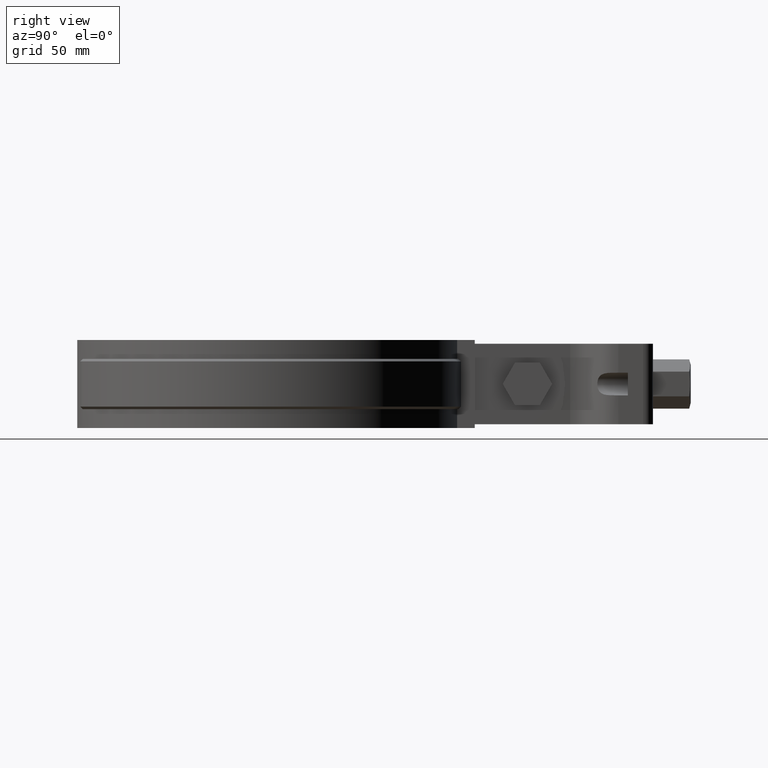
[diagram: clean part render]
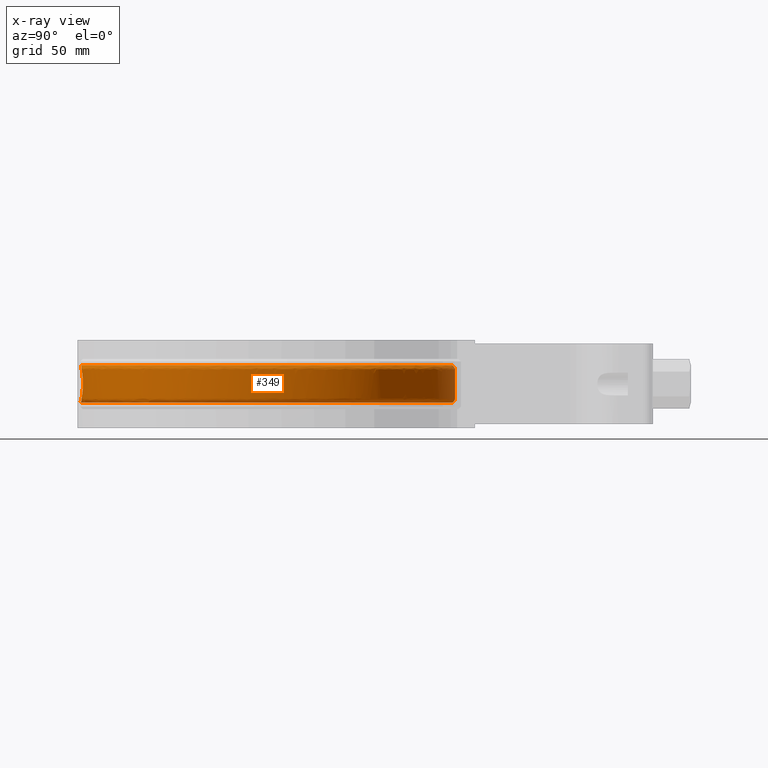
[diagram: x-ray — body ghosted, one internal face saturated and labeled with its STEP entity id]
A machine part, right view, then the same camera in x-ray: the body is ghosted and one INTERNAL B-rep face — a face not visible from any outside direction — is saturated and labeled: STEP entity #349.
In plain terms, the highlighted face is a freeform B-spline surface patch.
Its self-contained STEP definition (entity closure, byte-faithful):
#349 = ADVANCED_FACE( '', ( #565, #566 ), #567, .T. );
#565 = FACE_OUTER_BOUND( '', #1319, .T. );
#566 = FACE_BOUND( '', #1320, .T. );
#567 = B_SPLINE_SURFACE_WITH_KNOTS( '', 3, 3, ( ( #1321, #1322, #1323, #1324, #1325, #1326, #1327, #1328, #1329, #1330, #1331, #1332, #1333, #1334, #1335, #1336, #1337 ), ( #1338, #1339, #1340, #1341, #1342, #1343, #1344, #1345, #1346, #1347, #1348, #1349, #1350, #1351, #1352, #1353, #1354 ), ( #1355, #1356, #1357, #1358, #1359, #1360, #1361, #1362, #1363, #1364, #1365, #1366, #1367, #1368, #1369, #1370, #1371 ), ( #1372, #1373, #1374, #1375, #1376, #1377, #1378, #1379, #1380, #1381, #1382, #1383, #1384, #1385, #1386, #1387, #1388 ), ( #1389, #1390, #1391, #1392, #1393, #1394, #1395, #1396, #1397, #1398, #1399, #1400, #1401, #1402, #1403, #1404, #1405 ), ( #1406, #1407, #1408, #1409, #1410, #1411, #1412, #1413, #1414, #1415, #1416, #1417, #1418, #1419, #1420, #1421, #1422 ), ( #1423, #1424, #1425, #1426, #1427, #1428, #1429, #1430, #1431, #1432, #1433, #1434, #1435, #1436, #1437, #1438, #1439 ), ( #1440, #1441, #1442, #1443, #1444, #1445, #1446, #1447, #1448, #1449, #1450, #1451, #1452, #1453, #1454, #1455, #1456 ), ( #1457, #1458, #1459, #1460, #1461, #1462, #1463, #1464, #1465, #1466, #1467, #1468, #1469, #1470, #1471, #1472, #1473 ), ( #1474, #1475, #1476, #1477, #1478, #1479, #1480, #1481, #1482, #1483, #1484, #1485, #1486, #1487, #1488, #1489, #1490 ), ( #1491, #1492, #1493, #1494, #1495, #1496, #1497, #1498, #1499, #1500, #1501, #1502, #1503, #1504, #1505, #1506, #1507 ), ( #1508, #1509, #1510, #1511, #1512, #1513, #1514, #1515, #1516, #1517, #1518, #1519, #1520, #1521, #1522, #1523, #1524 ), ( #1525, #1526, #1527, #1528, #1529, #1530, #1531, #1532, #1533, #1534, #1535, #1536, #1537, #1538, #1539, #1540, #1541 ), ( #1542, #1543, #1544, #1545, #1546, #1547, #1548, #1549, #1550, #1551, #1552, #1553, #1554, #1555, #1556, #1557, #1558 ), ( #1559, #1560, #1561, #1562, #1563, #1564, #1565, #1566, #1567, #1568, #1569, #1570, #1571, #1572, #1573, #1574, #1575 ), ( #1576, #1577, #1578, #1579, #1580, #1581, #1582, #1583, #1584, #1585, #1586, #1587, #1588, #1589, #1590, #1591, #1592 ), ( #1593, #1594, #1595, #1596, #1597, #1598, #1599, #1600, #1601, #1602, #1603, #1604, #1605, #1606, #1607, #1608, #1609 ), ( #1610, #1611, #1612, #1613, #1614, #1615, #1616, #1617, #1618, #1619, #1620, #1621, #1622, #1623, #1624, #1625, #1626 ), ( #1627, #1628, #1629, #1630, #1631, #1632, #1633, #1634, #1635, #1636, #1637, #1638, #1639, #1640, #1641, #1642, #1643 ), ( #1644, #1645, #1646, #1647, #1648, #1649, #1650, #1651, #1652, #1653, #1654, #1655, #1656, #1657, #1658, #1659, #1660 ), ( #1661, #1662, #1663, #1664, #1665, #1666, #1667, #1668, #1669, #1670, #1671, #1672, #1673, #1674, #1675, #1676, #1677 ), ( #1678, #1679, #1680, #1681, #1682, #1683, #1684, #1685, #1686, #1687, #1688, #1689, #1690, #1691, #1692, #1693, #1694 ) ), .UNSPECIFIED., .F., .F., .F., ( 4, 3, 1, 1, 1, 3, 3, 1, 1, 1, 3, 4 ), ( 4, 1, 1, 1, 1, 1, 1, 1, 1, 1, 1, 1, 1, 1, 4 ), ( 0.000000000000000, 0.0909090909090909, 0.181818181818182, 0.272727272727273, 0.363636363636364, 0.454545454545455, 0.545454545454545, 0.636363636363636, 0.727272727272727, 0.818181818181818, 0.909090909090909, 1.00000000000000 ), ( 2.93919432429586, 4.00000000000000, 5.00000000000000, 6.00000000000000, 7.00000000000000, 8.00000000000000, 9.00000000000000, 10.0000000000000, 11.0000000000000, 12.0000000000000, 13.0000000000000, 14.0000000000000, 15.0000000000000, 16.0000000000000, 17.0000000000000 ), .UNSPECIFIED. );
#1319 = EDGE_LOOP( '', ( #3440, #3441, #3442, #3443, #3444, #3445, #3446, #3447, #3448, #3449, #3450, #3451 ) );
#1320 = EDGE_LOOP( '', ( #3452, #3453, #3454, #3455, #3456, #3457, #3458, #3459, #3460, #3461 ) );
#1321 = CARTESIAN_POINT( '', ( -4.61425015195980, 70.7622317509286, -26.5000000000000 ) );
#1322 = CARTESIAN_POINT( '', ( -15.5904203630949, 70.0470349368722, -26.5000000000000 ) );
#1323 = CARTESIAN_POINT( '', ( -36.6178724669983, 63.5869264265580, -26.5000000000000 ) );
#1324 = CARTESIAN_POINT( '', ( -60.4171282819462, 41.3778170815072, -26.5000000000000 ) );
#1325 = CARTESIAN_POINT( '', ( -72.2798619034494, 11.7564386340877, -26.5000000000000 ) );
#1326 = CARTESIAN_POINT( '', ( -70.4173990652024, -20.0977563256707, -26.5000000000000 ) );
#1327 = CARTESIAN_POINT( '', ( -55.1858107136761, -48.1359457803464, -26.5000000000000 ) );
#1328 = CARTESIAN_POINT( '', ( -29.4763509782398, -67.0349598757568, -26.5000000000000 ) );
#1329 = CARTESIAN_POINT( '', ( 1.82953666322226, -73.2065161750958, -26.5000000000000 ) );
#1330 = CARTESIAN_POINT( '', ( 32.7880639153756, -65.4788766479587, -26.5000000000000 ) );
#1331 = CARTESIAN_POINT( '', ( 57.5213898570196, -45.3192513699048, -26.5000000000000 ) );
#1332 = CARTESIAN_POINT( '', ( 71.3334128422005, -16.5551173620569, -26.5000000000000 ) );
#1333 = CARTESIAN_POINT( '', ( 71.6023635221745, 15.3519610054325, -26.5000000000000 ) );
#1334 = CARTESIAN_POINT( '', ( 58.2748608361785, 44.3452311182272, -26.5000000000000 ) );
#1335 = CARTESIAN_POINT( '', ( 33.8899510704301, 64.9154153993196, -26.5000000000000 ) );
#1336 = CARTESIAN_POINT( '', ( 13.3267450073814, 70.4210865172577, -26.5000000000000 ) );
#1337 = CARTESIAN_POINT( '', ( 2.96461729470620, 70.8501201839495, -26.5000000000000 ) );
#1338 = CARTESIAN_POINT( '', ( -4.58330382231512, 71.8998896366214, -25.3619288125423 ) );
#1339 = CARTESIAN_POINT( '', ( -15.7397192382122, 71.1895043673446, -25.3619288125423 ) );
#1340 = CARTESIAN_POINT( '', ( -37.1081463681043, 64.6569728626535, -25.3619288125423 ) );
#1341 = CARTESIAN_POINT( '', ( -61.3221754302980, 42.1279841595101, -25.3619288125423 ) );
#1342 = CARTESIAN_POINT( '', ( -73.4176082499287, 12.0506522216709, -25.3619288125423 ) );
#1343 = CARTESIAN_POINT( '', ( -71.5723646246281, -20.3153564475006, -25.3619288125423 ) );
#1344 = CARTESIAN_POINT( '', ( -56.1385669859300, -48.8240454349474, -25.3619288125423 ) );
#1345 = CARTESIAN_POINT( '', ( -30.0460432527390, -68.0629145587926, -25.3619288125423 ) );
#1346 = CARTESIAN_POINT( '', ( 1.75108133303469, -74.3791554281481, -25.3619288125423 ) );
#1347 = CARTESIAN_POINT( '', ( 33.2157412539665, -66.5735602607233, -25.3619288125423 ) );
#1348 = CARTESIAN_POINT( '', ( 58.3739903704118, -46.1281382677739, -25.3619288125423 ) );
#1349 = CARTESIAN_POINT( '', ( 72.4490973285679, -16.9246351334278, -25.3619288125423 ) );
#1350 = CARTESIAN_POINT( '', ( 72.7691627760226, 15.4919891642614, -25.3619288125423 ) );
#1351 = CARTESIAN_POINT( '', ( 59.2717740308285, 44.9681477001160, -25.3619288125423 ) );
#1352 = CARTESIAN_POINT( '', ( 34.5257198776660, 65.9032180638756, -25.3619288125423 ) );
#1353 = CARTESIAN_POINT( '', ( 13.6462086014126, 71.5264525608277, -25.3619288125423 ) );
#1354 = CARTESIAN_POINT( '', ( 3.11622377686040, 71.9780481525229, -25.3619288125423 ) );
#1355 = CARTESIAN_POINT( '', ( -4.55235749267045, 73.0375475223142, -24.2238576250846 ) );
#1356 = CARTESIAN_POINT( '', ( -15.8890181133296, 72.3319737978169, -24.2238576250846 ) );
#1357 = CARTESIAN_POINT( '', ( -37.5984202692104, 65.7270192987490, -24.2238576250846 ) );
#1358 = CARTESIAN_POINT( '', ( -62.2272225786497, 42.8781512375131, -24.2238576250846 ) );
#1359 = CARTESIAN_POINT( '', ( -74.5553545964080, 12.3448658092541, -24.2238576250846 ) );
#1360 = CARTESIAN_POINT( '', ( -72.7273301840538, -20.5329565693305, -24.2238576250846 ) );
#1361 = CARTESIAN_POINT( '', ( -57.0913232581840, -49.5121450895483, -24.2238576250846 ) );
#1362 = CARTESIAN_POINT( '', ( -30.6157355272383, -69.0908692418285, -24.2238576250846 ) );
#1363 = CARTESIAN_POINT( '', ( 1.67262600284711, -75.5517946812004, -24.2238576250846 ) );
#1364 = CARTESIAN_POINT( '', ( 33.6434185925574, -67.6682438734879, -24.2238576250846 ) );
#1365 = CARTESIAN_POINT( '', ( 59.2265908838041, -46.9370251656430, -24.2238576250846 ) );
#1366 = CARTESIAN_POINT( '', ( 73.5647818149354, -17.2941529047986, -24.2238576250846 ) );
#1367 = CARTESIAN_POINT( '', ( 73.9359620298707, 15.6320173230902, -24.2238576250846 ) );
#1368 = CARTESIAN_POINT( '', ( 60.2686872254784, 45.5910642820048, -24.2238576250846 ) );
#1369 = CARTESIAN_POINT( '', ( 35.1614886849019, 66.8910207284315, -24.2238576250846 ) );
#1370 = CARTESIAN_POINT( '', ( 13.9656721954438, 72.6318186043977, -24.2238576250846 ) );
#1371 = CARTESIAN_POINT( '', ( 3.26783025901459, 73.1059761210964, -24.2238576250846 ) );
#1372 = CARTESIAN_POINT( '', ( -4.52141116302577, 74.1752054080070, -23.0857864376269 ) );
#1373 = CARTESIAN_POINT( '', ( -16.0383169884469, 73.4744432282892, -23.0857864376269 ) );
#1374 = CARTESIAN_POINT( '', ( -38.0886941703164, 66.7970657348446, -23.0857864376269 ) );
#1375 = CARTESIAN_POINT( '', ( -63.1322697270015, 43.6283183155160, -23.0857864376269 ) );
#1376 = CARTESIAN_POINT( '', ( -75.6931009428873, 12.6390793968372, -23.0857864376269 ) );
#1377 = CARTESIAN_POINT( '', ( -73.8822957434795, -20.7505566911604, -23.0857864376269 ) );
#1378 = CARTESIAN_POINT( '', ( -58.0440795304379, -50.2002447441493, -23.0857864376269 ) );
#1379 = CARTESIAN_POINT( '', ( -31.1854278017375, -70.1188239248644, -23.0857864376269 ) );
#1380 = CARTESIAN_POINT( '', ( 1.59417067265954, -76.7244339342527, -23.0857864376269 ) );
#1381 = CARTESIAN_POINT( '', ( 34.0710959311483, -68.7629274862524, -23.0857864376269 ) );
#1382 = CARTESIAN_POINT( '', ( 60.0791913971964, -47.7459120635122, -23.0857864376269 ) );
#1383 = CARTESIAN_POINT( '', ( 74.6804663013028, -17.6636706761694, -23.0857864376269 ) );
#1384 = CARTESIAN_POINT( '', ( 75.1027612837188, 15.7720454819191, -23.0857864376269 ) );
#1385 = CARTESIAN_POINT( '', ( 61.2656004201283, 46.2139808638935, -23.0857864376269 ) );
#1386 = CARTESIAN_POINT( '', ( 35.7972574921378, 67.8788233929875, -23.0857864376269 ) );
#1387 = CARTESIAN_POINT( '', ( 14.2851357894750, 73.7371846479677, -23.0857864376269 ) );
#1388 = CARTESIAN_POINT( '', ( 3.41943674116879, 74.2339040896698, -23.0857864376269 ) );
#1389 = CARTESIAN_POINT( '', ( -4.51889429902262, 74.2677310875714, -22.9932271442431 ) );
#1390 = CARTESIAN_POINT( '', ( -16.0504594611992, 73.5673602306371, -22.9932271442431 ) );
#1391 = CARTESIAN_POINT( '', ( -38.1285681310589, 66.8840925773693, -22.9932271442431 ) );
#1392 = CARTESIAN_POINT( '', ( -63.2058771827157, 43.6893293800478, -22.9932271442431 ) );
#1393 = CARTESIAN_POINT( '', ( -75.7856338169647, 12.6630077785331, -22.9932271442431 ) );
#1394 = CARTESIAN_POINT( '', ( -73.9762290555967, -20.7682541021297, -22.9932271442431 ) );
#1395 = CARTESIAN_POINT( '', ( -58.1215671676777, -50.2562078671151, -22.9932271442431 ) );
#1396 = CARTESIAN_POINT( '', ( -31.2317608562555, -70.2024274464551, -22.9932271442431 ) );
#1397 = CARTESIAN_POINT( '', ( 1.58778990315726, -76.8198046473089, -22.9932271442431 ) );
#1398 = CARTESIAN_POINT( '', ( 34.1058789154577, -68.8519580695700, -22.9932271442431 ) );
#1399 = CARTESIAN_POINT( '', ( 60.1485333697619, -47.8116988091211, -22.9932271442431 ) );
#1400 = CARTESIAN_POINT( '', ( 74.7712048850009, -17.6937235447314, -22.9932271442431 ) );
#1401 = CARTESIAN_POINT( '', ( 75.1976570298260, 15.7834339676113, -22.9932271442431 ) );
#1402 = CARTESIAN_POINT( '', ( 61.3466793384585, 46.2646426496342, -22.9932271442431 ) );
#1403 = CARTESIAN_POINT( '', ( 35.8489645489562, 67.9591613521956, -22.9932271442431 ) );
#1404 = CARTESIAN_POINT( '', ( 14.3111177533902, 73.8270840330420, -22.9932271442431 ) );
#1405 = CARTESIAN_POINT( '', ( 3.43176689152779, 74.3256384353852, -22.9932271442431 ) );
#1406 = CARTESIAN_POINT( '', ( -4.51435634995178, 74.4345564786465, -22.7898759680773 ) );
#1407 = CARTESIAN_POINT( '', ( -16.0723525483405, 73.7348911834190, -22.7898759680773 ) );
#1408 = CARTESIAN_POINT( '', ( -38.2004615678421, 67.0410034707188, -22.7898759680773 ) );
#1409 = CARTESIAN_POINT( '', ( -63.3385926909225, 43.7993333783792, -22.7898759680773 ) );
#1410 = CARTESIAN_POINT( '', ( -75.9524721798704, 12.7061510621384, -22.7898759680773 ) );
#1411 = CARTESIAN_POINT( '', ( -74.1455924323663, -20.8001628383841, -22.7898759680773 ) );
#1412 = CARTESIAN_POINT( '', ( -58.2612787098881, -50.3571103400123, -22.7898759680773 ) );
#1413 = CARTESIAN_POINT( '', ( -31.3153001501689, -70.3531660333023, -22.7898759680773 ) );
#1414 = CARTESIAN_POINT( '', ( 1.57628526603826, -76.9917596826853, -22.7898759680773 ) );
#1415 = CARTESIAN_POINT( '', ( 34.1685932342012, -69.0124817420199, -22.7898759680773 ) );
#1416 = CARTESIAN_POINT( '', ( 60.2735581385138, -47.9303134425444, -22.7898759680773 ) );
#1417 = CARTESIAN_POINT( '', ( 74.9348081115028, -17.7479093834562, -22.7898759680773 ) );
#1418 = CARTESIAN_POINT( '', ( 75.3687556916270, 15.8039676031197, -22.7898759680773 ) );
#1419 = CARTESIAN_POINT( '', ( 61.4928660222207, 46.3559867203673, -22.7898759680773 ) );
#1420 = CARTESIAN_POINT( '', ( 35.9421932614139, 68.1040120739214, -22.7898759680773 ) );
#1421 = CARTESIAN_POINT( '', ( 14.3579636810445, 73.9891741699969, -22.7898759680773 ) );
#1422 = CARTESIAN_POINT( '', ( 3.45399836462086, 74.4910370379249, -22.7898759680773 ) );
#1423 = CARTESIAN_POINT( '', ( -4.50929834940872, 74.6205001517645, -22.4418734431229 ) );
#1424 = CARTESIAN_POINT( '', ( -16.0967545953714, 73.9216212760054, -22.4418734431229 ) );
#1425 = CARTESIAN_POINT( '', ( -38.2805940322253, 67.2158964391909, -22.4418734431229 ) );
#1426 = CARTESIAN_POINT( '', ( -63.4865174697386, 43.9219438957327, -22.4418734431229 ) );
#1427 = CARTESIAN_POINT( '', ( -76.1384303113979, 12.7542385898956, -22.4418734431229 ) );
#1428 = CARTESIAN_POINT( '', ( -74.3343649457424, -20.8357283334532, -22.4418734431229 ) );
#1429 = CARTESIAN_POINT( '', ( -58.4170012720723, -50.4695762920853, -22.4418734431229 ) );
#1430 = CARTESIAN_POINT( '', ( -31.4084130933477, -70.5211793455347, -22.4418734431229 ) );
#1431 = CARTESIAN_POINT( '', ( 1.56346219114533, -77.1834208601773, -22.4418734431229 ) );
#1432 = CARTESIAN_POINT( '', ( 34.2384946485429, -69.1914015160745, -22.4418734431229 ) );
#1433 = CARTESIAN_POINT( '', ( 60.4129108148818, -48.0625213785315, -22.4418734431229 ) );
#1434 = CARTESIAN_POINT( '', ( 75.1171603582062, -17.8083049492543, -22.4418734431229 ) );
#1435 = CARTESIAN_POINT( '', ( 75.5594623546585, 15.8268544046090, -22.4418734431229 ) );
#1436 = CARTESIAN_POINT( '', ( 61.6558057807582, 46.4577988721040, -22.4418734431229 ) );
#1437 = CARTESIAN_POINT( '', ( 36.0461060358587, 68.2654627684344, -22.4418734431229 ) );
#1438 = CARTESIAN_POINT( '', ( 14.4101781779057, 74.1698399262547, -22.4418734431229 ) );
#1439 = CARTESIAN_POINT( '', ( 3.47877757682057, 74.6753904117525, -22.4418734431229 ) );
#1440 = CARTESIAN_POINT( '', ( -4.50618364805317, 74.7350037003084, -22.0642686993349 ) );
#1441 = CARTESIAN_POINT( '', ( -16.1117813017385, 74.0366090992668, -22.0642686993349 ) );
#1442 = CARTESIAN_POINT( '', ( -38.3299393601495, 67.3235949974134, -22.0642686993349 ) );
#1443 = CARTESIAN_POINT( '', ( -63.5776090987679, 43.9974470795214, -22.0642686993349 ) );
#1444 = CARTESIAN_POINT( '', ( -76.2529427633863, 12.7838507432782, -22.0642686993349 ) );
#1445 = CARTESIAN_POINT( '', ( -74.4506104855162, -20.8576294571798, -22.0642686993349 ) );
#1446 = CARTESIAN_POINT( '', ( -58.5128947523905, -50.5388324834188, -22.0642686993349 ) );
#1447 = CARTESIAN_POINT( '', ( -31.4657517606470, -70.6246414323625, -22.0642686993349 ) );
#1448 = CARTESIAN_POINT( '', ( 1.55556578061486, -77.3014452305305, -22.0642686993349 ) );
#1449 = CARTESIAN_POINT( '', ( 34.2815397269591, -69.3015797689313, -22.0642686993349 ) );
#1450 = CARTESIAN_POINT( '', ( 60.4987237692871, -48.1439346235337, -22.0642686993349 ) );
#1451 = CARTESIAN_POINT( '', ( 75.2294523172837, -17.8454963550399, -22.0642686993349 ) );
#1452 = CARTESIAN_POINT( '', ( 75.6768989379091, 15.8409480273788, -22.0642686993349 ) );
#1453 = CARTESIAN_POINT( '', ( 61.7561435886468, 46.5204944855832, -22.0642686993349 ) );
#1454 = CARTESIAN_POINT( '', ( 36.1100952064147, 68.3648836152243, -22.0642686993349 ) );
#1455 = CARTESIAN_POINT( '', ( 14.4423317063145, 74.2810933496436, -22.0642686993349 ) );
#1456 = CARTESIAN_POINT( '', ( 3.49403654035189, 74.7889146588287, -22.0642686993349 ) );
#1457 = CARTESIAN_POINT( '', ( -4.50548251075870, 74.7607791115174, -21.8024714832808 ) );
#1458 = CARTESIAN_POINT( '', ( -16.1151639002750, 74.0624935235164, -21.8024714832808 ) );
#1459 = CARTESIAN_POINT( '', ( -38.3410472789404, 67.3478385659326, -21.8024714832808 ) );
#1460 = CARTESIAN_POINT( '', ( -63.5981143514503, 44.0144432829971, -21.8024714832808 ) );
#1461 = CARTESIAN_POINT( '', ( -76.2787201788122, 12.7905166103184, -21.8024714832808 ) );
#1462 = CARTESIAN_POINT( '', ( -74.4767780290289, -20.8625595268342, -21.8024714832809 ) );
#1463 = CARTESIAN_POINT( '', ( -58.5344809295780, -50.5544224527524, -21.8024714832808 ) );
#1464 = CARTESIAN_POINT( '', ( -31.4786590263747, -70.6479313466616, -21.8024714832808 ) );
#1465 = CARTESIAN_POINT( '', ( 1.55378825292173, -77.3280131990977, -21.8024714832808 ) );
#1466 = CARTESIAN_POINT( '', ( 34.2912294231372, -69.3263815310582, -21.8024714832808 ) );
#1467 = CARTESIAN_POINT( '', ( 60.5180407617732, -48.1622612159798, -21.8024714832808 ) );
#1468 = CARTESIAN_POINT( '', ( 75.2547298869092, -17.8538683556438, -21.8024714832808 ) );
#1469 = CARTESIAN_POINT( '', ( 75.7033345921990, 15.8441205833994, -21.8024714832808 ) );
#1470 = CARTESIAN_POINT( '', ( 61.7787302096819, 46.5346076308873, -21.8024714832809 ) );
#1471 = CARTESIAN_POINT( '', ( 36.1244995389003, 68.3872638230112, -21.8024714832808 ) );
#1472 = CARTESIAN_POINT( '', ( 14.4495696515756, 74.3061371388774, -21.8024714832808 ) );
#1473 = CARTESIAN_POINT( '', ( 3.49747142131972, 74.8144696236118, -21.8024714832808 ) );
#1474 = CARTESIAN_POINT( '', ( -4.50548251075870, 74.7607791115174, -21.6715728752538 ) );
#1475 = CARTESIAN_POINT( '', ( -16.1151639002750, 74.0624935235164, -21.6715728752538 ) );
#1476 = CARTESIAN_POINT( '', ( -38.3410472789404, 67.3478385659326, -21.6715728752538 ) );
#1477 = CARTESIAN_POINT( '', ( -63.5981143514503, 44.0144432829971, -21.6715728752538 ) );
#1478 = CARTESIAN_POINT( '', ( -76.2787201788122, 12.7905166103184, -21.6715728752538 ) );
#1479 = CARTESIAN_POINT( '', ( -74.4767780290289, -20.8625595268342, -21.6715728752538 ) );
#1480 = CARTESIAN_POINT( '', ( -58.5344809295780, -50.5544224527524, -21.6715728752538 ) );
#1481 = CARTESIAN_POINT( '', ( -31.4786590263747, -70.6479313466616, -21.6715728752538 ) );
#1482 = CARTESIAN_POINT( '', ( 1.55378825292173, -77.3280131990977, -21.6715728752538 ) );
#1483 = CARTESIAN_POINT( '', ( 34.2912294231372, -69.3263815310582, -21.6715728752538 ) );
#1484 = CARTESIAN_POINT( '', ( 60.5180407617732, -48.1622612159798, -21.6715728752538 ) );
#1485 = CARTESIAN_POINT( '', ( 75.2547298869092, -17.8538683556438, -21.6715728752538 ) );
#1486 = CARTESIAN_POINT( '', ( 75.7033345921990, 15.8441205833994, -21.6715728752538 ) );
#1487 = CARTESIAN_POINT( '', ( 61.7787302096819, 46.5346076308873, -21.6715728752538 ) );
#1488 = CARTESIAN_POINT( '', ( 36.1244995389003, 68.3872638230112, -21.6715728752538 ) );
#1489 = CARTESIAN_POINT( '', ( 14.4495696515756, 74.3061371388774, -21.6715728752538 ) );
#1490 = CARTESIAN_POINT( '', ( 3.49747142131972, 74.8144696236118, -21.6715728752538 ) );
#1491 = CARTESIAN_POINT( '', ( -4.50548251075870, 74.7607791115174, -17.8905242917513 ) );
#1492 = CARTESIAN_POINT( '', ( -16.1151639002750, 74.0624935235164, -17.8905242917513 ) );
#1493 = CARTESIAN_POINT( '', ( -38.3410472789404, 67.3478385659326, -17.8905242917513 ) );
#1494 = CARTESIAN_POINT( '', ( -63.5981143514503, 44.0144432829971, -17.8905242917513 ) );
#1495 = CARTESIAN_POINT( '', ( -76.2787201788122, 12.7905166103184, -17.8905242917513 ) );
#1496 = CARTESIAN_POINT( '', ( -74.4767780290289, -20.8625595268342, -17.8905242917513 ) );
#1497 = CARTESIAN_POINT( '', ( -58.5344809295780, -50.5544224527524, -17.8905242917513 ) );
#1498 = CARTESIAN_POINT( '', ( -31.4786590263747, -70.6479313466616, -17.8905242917513 ) );
#1499 = CARTESIAN_POINT( '', ( 1.55378825292173, -77.3280131990977, -17.8905242917513 ) );
#1500 = CARTESIAN_POINT( '', ( 34.2912294231372, -69.3263815310582, -17.8905242917513 ) );
#1501 = CARTESIAN_POINT( '', ( 60.5180407617732, -48.1622612159798, -17.8905242917513 ) );
#1502 = CARTESIAN_POINT( '', ( 75.2547298869093, -17.8538683556439, -17.8905242917513 ) );
#1503 = CARTESIAN_POINT( '', ( 75.7033345921990, 15.8441205833994, -17.8905242917512 ) );
#1504 = CARTESIAN_POINT( '', ( 61.7787302096820, 46.5346076308873, -17.8905242917513 ) );
#1505 = CARTESIAN_POINT( '', ( 36.1244995389003, 68.3872638230113, -17.8905242917513 ) );
#1506 = CARTESIAN_POINT( '', ( 14.4495696515756, 74.3061371388774, -17.8905242917513 ) );
#1507 = CARTESIAN_POINT( '', ( 3.49747142131972, 74.8144696236118, -17.8905242917513 ) );
#1508 = CARTESIAN_POINT( '', ( -4.50548251075870, 74.7607791115174, -14.1094757082487 ) );
#1509 = CARTESIAN_POINT( '', ( -16.1151639002750, 74.0624935235164, -14.1094757082487 ) );
#1510 = CARTESIAN_POINT( '', ( -38.3410472789404, 67.3478385659326, -14.1094757082487 ) );
#1511 = CARTESIAN_POINT( '', ( -63.5981143514503, 44.0144432829971, -14.1094757082487 ) );
#1512 = CARTESIAN_POINT( '', ( -76.2787201788122, 12.7905166103184, -14.1094757082487 ) );
#1513 = CARTESIAN_POINT( '', ( -74.4767780290289, -20.8625595268342, -14.1094757082487 ) );
#1514 = CARTESIAN_POINT( '', ( -58.5344809295780, -50.5544224527524, -14.1094757082487 ) );
#1515 = CARTESIAN_POINT( '', ( -31.4786590263747, -70.6479313466616, -14.1094757082487 ) );
#1516 = CARTESIAN_POINT( '', ( 1.55378825292173, -77.3280131990977, -14.1094757082487 ) );
#1517 = CARTESIAN_POINT( '', ( 34.2912294231372, -69.3263815310582, -14.1094757082487 ) );
#1518 = CARTESIAN_POINT( '', ( 60.5180407617732, -48.1622612159798, -14.1094757082487 ) );
#1519 = CARTESIAN_POINT( '', ( 75.2547298869093, -17.8538683556439, -14.1094757082487 ) );
#1520 = CARTESIAN_POINT( '', ( 75.7033345921990, 15.8441205833994, -14.1094757082487 ) );
#1521 = CARTESIAN_POINT( '', ( 61.7787302096820, 46.5346076308873, -14.1094757082487 ) );
#1522 = CARTESIAN_POINT( '', ( 36.1244995389003, 68.3872638230113, -14.1094757082487 ) );
#1523 = CARTESIAN_POINT( '', ( 14.4495696515756, 74.3061371388774, -14.1094757082487 ) );
#1524 = CARTESIAN_POINT( '', ( 3.49747142131972, 74.8144696236118, -14.1094757082487 ) );
#1525 = CARTESIAN_POINT( '', ( -4.50548251075870, 74.7607791115174, -10.3284271247462 ) );
#1526 = CARTESIAN_POINT( '', ( -16.1151639002750, 74.0624935235164, -10.3284271247462 ) );
#1527 = CARTESIAN_POINT( '', ( -38.3410472789404, 67.3478385659326, -10.3284271247462 ) );
#1528 = CARTESIAN_POINT( '', ( -63.5981143514503, 44.0144432829971, -10.3284271247462 ) );
#1529 = CARTESIAN_POINT( '', ( -76.2787201788122, 12.7905166103184, -10.3284271247462 ) );
#1530 = CARTESIAN_POINT( '', ( -74.4767780290289, -20.8625595268342, -10.3284271247462 ) );
#1531 = CARTESIAN_POINT( '', ( -58.5344809295780, -50.5544224527524, -10.3284271247462 ) );
#1532 = CARTESIAN_POINT( '', ( -31.4786590263747, -70.6479313466616, -10.3284271247462 ) );
#1533 = CARTESIAN_POINT( '', ( 1.55378825292173, -77.3280131990977, -10.3284271247462 ) );
#1534 = CARTESIAN_POINT( '', ( 34.2912294231372, -69.3263815310582, -10.3284271247462 ) );
#1535 = CARTESIAN_POINT( '', ( 60.5180407617732, -48.1622612159798, -10.3284271247462 ) );
#1536 = CARTESIAN_POINT( '', ( 75.2547298869093, -17.8538683556439, -10.3284271247462 ) );
#1537 = CARTESIAN_POINT( '', ( 75.7033345921990, 15.8441205833994, -10.3284271247462 ) );
#1538 = CARTESIAN_POINT( '', ( 61.7787302096820, 46.5346076308873, -10.3284271247462 ) );
#1539 = CARTESIAN_POINT( '', ( 36.1244995389003, 68.3872638230113, -10.3284271247462 ) );
#1540 = CARTESIAN_POINT( '', ( 14.4495696515756, 74.3061371388774, -10.3284271247462 ) );
#1541 = CARTESIAN_POINT( '', ( 3.49747142131972, 74.8144696236118, -10.3284271247462 ) );
#1542 = CARTESIAN_POINT( '', ( -4.50548251075870, 74.7607791115174, -10.1975285167192 ) );
#1543 = CARTESIAN_POINT( '', ( -16.1151639002750, 74.0624935235164, -10.1975285167192 ) );
#1544 = CARTESIAN_POINT( '', ( -38.3410472789404, 67.3478385659326, -10.1975285167192 ) );
#1545 = CARTESIAN_POINT( '', ( -63.5981143514503, 44.0144432829971, -10.1975285167192 ) );
#1546 = CARTESIAN_POINT( '', ( -76.2787201788122, 12.7905166103184, -10.1975285167192 ) );
#1547 = CARTESIAN_POINT( '', ( -74.4767780290289, -20.8625595268342, -10.1975285167192 ) );
#1548 = CARTESIAN_POINT( '', ( -58.5344809295780, -50.5544224527524, -10.1975285167192 ) );
#1549 = CARTESIAN_POINT( '', ( -31.4786590263747, -70.6479313466616, -10.1975285167192 ) );
#1550 = CARTESIAN_POINT( '', ( 1.55378825292173, -77.3280131990977, -10.1975285167192 ) );
#1551 = CARTESIAN_POINT( '', ( 34.2912294231372, -69.3263815310582, -10.1975285167192 ) );
#1552 = CARTESIAN_POINT( '', ( 60.5180407617732, -48.1622612159798, -10.1975285167192 ) );
#1553 = CARTESIAN_POINT( '', ( 75.2547298869093, -17.8538683556439, -10.1975285167192 ) );
#1554 = CARTESIAN_POINT( '', ( 75.7033345921990, 15.8441205833994, -10.1975285167192 ) );
#1555 = CARTESIAN_POINT( '', ( 61.7787302096820, 46.5346076308873, -10.1975285167192 ) );
#1556 = CARTESIAN_POINT( '', ( 36.1244995389003, 68.3872638230113, -10.1975285167192 ) );
#1557 = CARTESIAN_POINT( '', ( 14.4495696515756, 74.3061371388774, -10.1975285167192 ) );
#1558 = CARTESIAN_POINT( '', ( 3.49747142131972, 74.8144696236118, -10.1975285167192 ) );
#1559 = CARTESIAN_POINT( '', ( -4.50618364805317, 74.7350037003084, -9.93573130066510 ) );
#1560 = CARTESIAN_POINT( '', ( -16.1117813017385, 74.0366090992668, -9.93573130066509 ) );
#1561 = CARTESIAN_POINT( '', ( -38.3299393601495, 67.3235949974135, -9.93573130066510 ) );
#1562 = CARTESIAN_POINT( '', ( -63.5776090987679, 43.9974470795214, -9.93573130066509 ) );
#1563 = CARTESIAN_POINT( '', ( -76.2529427633863, 12.7838507432782, -9.93573130066510 ) );
#1564 = CARTESIAN_POINT( '', ( -74.4506104855162, -20.8576294571798, -9.93573130066510 ) );
#1565 = CARTESIAN_POINT( '', ( -58.5128947523905, -50.5388324834188, -9.93573130066509 ) );
#1566 = CARTESIAN_POINT( '', ( -31.4657517606470, -70.6246414323625, -9.93573130066510 ) );
#1567 = CARTESIAN_POINT( '', ( 1.55556578061486, -77.3014452305306, -9.93573130066509 ) );
#1568 = CARTESIAN_POINT( '', ( 34.2815397269591, -69.3015797689313, -9.93573130066509 ) );
#1569 = CARTESIAN_POINT( '', ( 60.4987237692871, -48.1439346235337, -9.93573130066510 ) );
#1570 = CARTESIAN_POINT( '', ( 75.2294523172837, -17.8454963550399, -9.93573130066509 ) );
#1571 = CARTESIAN_POINT( '', ( 75.6768989379092, 15.8409480273788, -9.93573130066509 ) );
#1572 = CARTESIAN_POINT( '', ( 61.7561435886468, 46.5204944855833, -9.93573130066510 ) );
#1573 = CARTESIAN_POINT( '', ( 36.1100952064147, 68.3648836152242, -9.93573130066510 ) );
#1574 = CARTESIAN_POINT( '', ( 14.4423317063145, 74.2810933496436, -9.93573130066510 ) );
#1575 = CARTESIAN_POINT( '', ( 3.49403654035189, 74.7889146588287, -9.93573130066510 ) );
#1576 = CARTESIAN_POINT( '', ( -4.50929834940872, 74.6205001517646, -9.55812655687707 ) );
#1577 = CARTESIAN_POINT( '', ( -16.0967545953714, 73.9216212760054, -9.55812655687707 ) );
#1578 = CARTESIAN_POINT( '', ( -38.2805940322253, 67.2158964391909, -9.55812655687707 ) );
#1579 = CARTESIAN_POINT( '', ( -63.4865174697386, 43.9219438957327, -9.55812655687707 ) );
#1580 = CARTESIAN_POINT( '', ( -76.1384303113979, 12.7542385898956, -9.55812655687707 ) );
#1581 = CARTESIAN_POINT( '', ( -74.3343649457424, -20.8357283334532, -9.55812655687708 ) );
#1582 = CARTESIAN_POINT( '', ( -58.4170012720724, -50.4695762920853, -9.55812655687707 ) );
#1583 = CARTESIAN_POINT( '', ( -31.4084130933477, -70.5211793455347, -9.55812655687708 ) );
#1584 = CARTESIAN_POINT( '', ( 1.56346219114533, -77.1834208601773, -9.55812655687707 ) );
#1585 = CARTESIAN_POINT( '', ( 34.2384946485429, -69.1914015160745, -9.55812655687707 ) );
#1586 = CARTESIAN_POINT( '', ( 60.4129108148818, -48.0625213785315, -9.55812655687707 ) );
#1587 = CARTESIAN_POINT( '', ( 75.1171603582062, -17.8083049492543, -9.55812655687707 ) );
#1588 = CARTESIAN_POINT( '', ( 75.5594623546585, 15.8268544046090, -9.55812655687706 ) );
#1589 = CARTESIAN_POINT( '', ( 61.6558057807582, 46.4577988721040, -9.55812655687708 ) );
#1590 = CARTESIAN_POINT( '', ( 36.0461060358587, 68.2654627684344, -9.55812655687707 ) );
#1591 = CARTESIAN_POINT( '', ( 14.4101781779057, 74.1698399262547, -9.55812655687707 ) );
#1592 = CARTESIAN_POINT( '', ( 3.47877757682057, 74.6753904117525, -9.55812655687707 ) );
#1593 = CARTESIAN_POINT( '', ( -4.51435634995178, 74.4345564786465, -9.21012403192272 ) );
#1594 = CARTESIAN_POINT( '', ( -16.0723525483405, 73.7348911834190, -9.21012403192272 ) );
#1595 = CARTESIAN_POINT( '', ( -38.2004615678421, 67.0410034707188, -9.21012403192272 ) );
#1596 = CARTESIAN_POINT( '', ( -63.3385926909225, 43.7993333783792, -9.21012403192272 ) );
#1597 = CARTESIAN_POINT( '', ( -75.9524721798704, 12.7061510621384, -9.21012403192272 ) );
#1598 = CARTESIAN_POINT( '', ( -74.1455924323663, -20.8001628383841, -9.21012403192273 ) );
#1599 = CARTESIAN_POINT( '', ( -58.2612787098881, -50.3571103400123, -9.21012403192272 ) );
#1600 = CARTESIAN_POINT( '', ( -31.3153001501689, -70.3531660333023, -9.21012403192272 ) );
#1601 = CARTESIAN_POINT( '', ( 1.57628526603826, -76.9917596826853, -9.21012403192272 ) );
#1602 = CARTESIAN_POINT( '', ( 34.1685932342012, -69.0124817420199, -9.21012403192272 ) );
#1603 = CARTESIAN_POINT( '', ( 60.2735581385138, -47.9303134425444, -9.21012403192272 ) );
#1604 = CARTESIAN_POINT( '', ( 74.9348081115028, -17.7479093834562, -9.21012403192272 ) );
#1605 = CARTESIAN_POINT( '', ( 75.3687556916270, 15.8039676031197, -9.21012403192272 ) );
#1606 = CARTESIAN_POINT( '', ( 61.4928660222207, 46.3559867203673, -9.21012403192273 ) );
#1607 = CARTESIAN_POINT( '', ( 35.9421932614139, 68.1040120739214, -9.21012403192272 ) );
#1608 = CARTESIAN_POINT( '', ( 14.3579636810445, 73.9891741699969, -9.21012403192272 ) );
#1609 = CARTESIAN_POINT( '', ( 3.45399836462086, 74.4910370379249, -9.21012403192272 ) );
#1610 = CARTESIAN_POINT( '', ( -4.51889429902262, 74.2677310875714, -9.00677285575689 ) );
#1611 = CARTESIAN_POINT( '', ( -16.0504594611992, 73.5673602306371, -9.00677285575689 ) );
#1612 = CARTESIAN_POINT( '', ( -38.1285681310589, 66.8840925773693, -9.00677285575690 ) );
#1613 = CARTESIAN_POINT( '', ( -63.2058771827157, 43.6893293800478, -9.00677285575689 ) );
#1614 = CARTESIAN_POINT( '', ( -75.7856338169647, 12.6630077785331, -9.00677285575689 ) );
#1615 = CARTESIAN_POINT( '', ( -73.9762290555967, -20.7682541021297, -9.00677285575690 ) );
#1616 = CARTESIAN_POINT( '', ( -58.1215671676777, -50.2562078671151, -9.00677285575689 ) );
#1617 = CARTESIAN_POINT( '', ( -31.2317608562555, -70.2024274464551, -9.00677285575690 ) );
#1618 = CARTESIAN_POINT( '', ( 1.58778990315726, -76.8198046473089, -9.00677285575689 ) );
#1619 = CARTESIAN_POINT( '', ( 34.1058789154577, -68.8519580695700, -9.00677285575690 ) );
#1620 = CARTESIAN_POINT( '', ( 60.1485333697619, -47.8116988091211, -9.00677285575689 ) );
#1621 = CARTESIAN_POINT( '', ( 74.7712048850009, -17.6937235447314, -9.00677285575689 ) );
#1622 = CARTESIAN_POINT( '', ( 75.1976570298260, 15.7834339676113, -9.00677285575689 ) );
#1623 = CARTESIAN_POINT( '', ( 61.3466793384585, 46.2646426496342, -9.00677285575690 ) );
#1624 = CARTESIAN_POINT( '', ( 35.8489645489562, 67.9591613521956, -9.00677285575689 ) );
#1625 = CARTESIAN_POINT( '', ( 14.3111177533902, 73.8270840330420, -9.00677285575689 ) );
#1626 = CARTESIAN_POINT( '', ( 3.43176689152779, 74.3256384353852, -9.00677285575689 ) );
#1627 = CARTESIAN_POINT( '', ( -4.52141116302577, 74.1752054080070, -8.91421356237310 ) );
#1628 = CARTESIAN_POINT( '', ( -16.0383169884469, 73.4744432282892, -8.91421356237310 ) );
#1629 = CARTESIAN_POINT( '', ( -38.0886941703164, 66.7970657348446, -8.91421356237310 ) );
#1630 = CARTESIAN_POINT( '', ( -63.1322697270015, 43.6283183155160, -8.91421356237310 ) );
#1631 = CARTESIAN_POINT( '', ( -75.6931009428873, 12.6390793968372, -8.91421356237310 ) );
#1632 = CARTESIAN_POINT( '', ( -73.8822957434795, -20.7505566911604, -8.91421356237310 ) );
#1633 = CARTESIAN_POINT( '', ( -58.0440795304379, -50.2002447441493, -8.91421356237310 ) );
#1634 = CARTESIAN_POINT( '', ( -31.1854278017375, -70.1188239248644, -8.91421356237310 ) );
#1635 = CARTESIAN_POINT( '', ( 1.59417067265954, -76.7244339342527, -8.91421356237310 ) );
#1636 = CARTESIAN_POINT( '', ( 34.0710959311483, -68.7629274862524, -8.91421356237310 ) );
#1637 = CARTESIAN_POINT( '', ( 60.0791913971964, -47.7459120635122, -8.91421356237310 ) );
#1638 = CARTESIAN_POINT( '', ( 74.6804663013028, -17.6636706761694, -8.91421356237310 ) );
#1639 = CARTESIAN_POINT( '', ( 75.1027612837188, 15.7720454819191, -8.91421356237309 ) );
#1640 = CARTESIAN_POINT( '', ( 61.2656004201283, 46.2139808638935, -8.91421356237310 ) );
#1641 = CARTESIAN_POINT( '', ( 35.7972574921378, 67.8788233929875, -8.91421356237310 ) );
#1642 = CARTESIAN_POINT( '', ( 14.2851357894750, 73.7371846479677, -8.91421356237310 ) );
#1643 = CARTESIAN_POINT( '', ( 3.41943674116879, 74.2339040896698, -8.91421356237310 ) );
#1644 = CARTESIAN_POINT( '', ( -4.55235749267045, 73.0375475223142, -7.77614237491542 ) );
#1645 = CARTESIAN_POINT( '', ( -15.8890181133296, 72.3319737978169, -7.77614237491542 ) );
#1646 = CARTESIAN_POINT( '', ( -37.5984202692104, 65.7270192987491, -7.77614237491542 ) );
#1647 = CARTESIAN_POINT( '', ( -62.2272225786497, 42.8781512375131, -7.77614237491542 ) );
#1648 = CARTESIAN_POINT( '', ( -74.5553545964081, 12.3448658092541, -7.77614237491542 ) );
#1649 = CARTESIAN_POINT( '', ( -72.7273301840538, -20.5329565693305, -7.77614237491542 ) );
#1650 = CARTESIAN_POINT( '', ( -57.0913232581840, -49.5121450895484, -7.77614237491542 ) );
#1651 = CARTESIAN_POINT( '', ( -30.6157355272383, -69.0908692418285, -7.77614237491542 ) );
#1652 = CARTESIAN_POINT( '', ( 1.67262600284711, -75.5517946812004, -7.77614237491542 ) );
#1653 = CARTESIAN_POINT( '', ( 33.6434185925574, -67.6682438734879, -7.77614237491542 ) );
#1654 = CARTESIAN_POINT( '', ( 59.2265908838041, -46.9370251656431, -7.77614237491542 ) );
#1655 = CARTESIAN_POINT( '', ( 73.5647818149354, -17.2941529047986, -7.77614237491542 ) );
#1656 = CARTESIAN_POINT( '', ( 73.9359620298707, 15.6320173230902, -7.77614237491541 ) );
#1657 = CARTESIAN_POINT( '', ( 60.2686872254784, 45.5910642820048, -7.77614237491542 ) );
#1658 = CARTESIAN_POINT( '', ( 35.1614886849019, 66.8910207284315, -7.77614237491542 ) );
#1659 = CARTESIAN_POINT( '', ( 13.9656721954438, 72.6318186043977, -7.77614237491542 ) );
#1660 = CARTESIAN_POINT( '', ( 3.26783025901460, 73.1059761210964, -7.77614237491542 ) );
#1661 = CARTESIAN_POINT( '', ( -4.58330382231512, 71.8998896366214, -6.63807118745772 ) );
#1662 = CARTESIAN_POINT( '', ( -15.7397192382122, 71.1895043673446, -6.63807118745772 ) );
#1663 = CARTESIAN_POINT( '', ( -37.1081463681043, 64.6569728626535, -6.63807118745773 ) );
#1664 = CARTESIAN_POINT( '', ( -61.3221754302980, 42.1279841595102, -6.63807118745772 ) );
#1665 = CARTESIAN_POINT( '', ( -73.4176082499288, 12.0506522216709, -6.63807118745772 ) );
#1666 = CARTESIAN_POINT( '', ( -71.5723646246281, -20.3153564475006, -6.63807118745773 ) );
#1667 = CARTESIAN_POINT( '', ( -56.1385669859300, -48.8240454349474, -6.63807118745772 ) );
#1668 = CARTESIAN_POINT( '', ( -30.0460432527390, -68.0629145587926, -6.63807118745773 ) );
#1669 = CARTESIAN_POINT( '', ( 1.75108133303468, -74.3791554281481, -6.63807118745772 ) );
#1670 = CARTESIAN_POINT( '', ( 33.2157412539665, -66.5735602607233, -6.63807118745773 ) );
#1671 = CARTESIAN_POINT( '', ( 58.3739903704119, -46.1281382677739, -6.63807118745773 ) );
#1672 = CARTESIAN_POINT( '', ( 72.4490973285679, -16.9246351334278, -6.63807118745772 ) );
#1673 = CARTESIAN_POINT( '', ( 72.7691627760226, 15.4919891642614, -6.63807118745772 ) );
#1674 = CARTESIAN_POINT( '', ( 59.2717740308285, 44.9681477001160, -6.63807118745773 ) );
#1675 = CARTESIAN_POINT( '', ( 34.5257198776660, 65.9032180638756, -6.63807118745773 ) );
#1676 = CARTESIAN_POINT( '', ( 13.6462086014126, 71.5264525608277, -6.63807118745772 ) );
#1677 = CARTESIAN_POINT( '', ( 3.11622377686040, 71.9780481525230, -6.63807118745772 ) );
#1678 = CARTESIAN_POINT( '', ( -4.61425015195980, 70.7622317509286, -5.50000000000003 ) );
#1679 = CARTESIAN_POINT( '', ( -15.5904203630949, 70.0470349368723, -5.50000000000003 ) );
#1680 = CARTESIAN_POINT( '', ( -36.6178724669983, 63.5869264265580, -5.50000000000003 ) );
#1681 = CARTESIAN_POINT( '', ( -60.4171282819462, 41.3778170815072, -5.50000000000003 ) );
#1682 = CARTESIAN_POINT( '', ( -72.2798619034495, 11.7564386340877, -5.50000000000003 ) );
#1683 = CARTESIAN_POINT( '', ( -70.4173990652024, -20.0977563256707, -5.50000000000003 ) );
#1684 = CARTESIAN_POINT( '', ( -55.1858107136761, -48.1359457803465, -5.50000000000003 ) );
#1685 = CARTESIAN_POINT( '', ( -29.4763509782398, -67.0349598757568, -5.50000000000003 ) );
#1686 = CARTESIAN_POINT( '', ( 1.82953666322226, -73.2065161750958, -5.50000000000003 ) );
#1687 = CARTESIAN_POINT( '', ( 32.7880639153756, -65.4788766479587, -5.50000000000003 ) );
#1688 = CARTESIAN_POINT( '', ( 57.5213898570196, -45.3192513699048, -5.50000000000003 ) );
#1689 = CARTESIAN_POINT( '', ( 71.3334128422005, -16.5551173620569, -5.50000000000003 ) );
#1690 = CARTESIAN_POINT( '', ( 71.6023635221745, 15.3519610054325, -5.50000000000003 ) );
#1691 = CARTESIAN_POINT( '', ( 58.2748608361786, 44.3452311182273, -5.50000000000003 ) );
#1692 = CARTESIAN_POINT( '', ( 33.8899510704301, 64.9154153993196, -5.50000000000003 ) );
#1693 = CARTESIAN_POINT( '', ( 13.3267450073814, 70.4210865172577, -5.50000000000003 ) );
#1694 = CARTESIAN_POINT( '', ( 2.96461729470620, 70.8501201839495, -5.50000000000003 ) );
#3440 = ORIENTED_EDGE( '', *, *, #5102, .F. );
#3441 = ORIENTED_EDGE( '', *, *, #5103, .F. );
#3442 = ORIENTED_EDGE( '', *, *, #5104, .F. );
#3443 = ORIENTED_EDGE( '', *, *, #5105, .F. );
#3444 = ORIENTED_EDGE( '', *, *, #5106, .F. );
#3445 = ORIENTED_EDGE( '', *, *, #5107, .F. );
#3446 = ORIENTED_EDGE( '', *, *, #5108, .F. );
#3447 = ORIENTED_EDGE( '', *, *, #5109, .F. );
#3448 = ORIENTED_EDGE( '', *, *, #5110, .F. );
#3449 = ORIENTED_EDGE( '', *, *, #5111, .F. );
#3450 = ORIENTED_EDGE( '', *, *, #5112, .F. );
#3451 = ORIENTED_EDGE( '', *, *, #5113, .F. );
#3452 = ORIENTED_EDGE( '', *, *, #5114, .F. );
#3453 = ORIENTED_EDGE( '', *, *, #5115, .F. );
#3454 = ORIENTED_EDGE( '', *, *, #5116, .F. );
#3455 = ORIENTED_EDGE( '', *, *, #5117, .F. );
#3456 = ORIENTED_EDGE( '', *, *, #5118, .F. );
#3457 = ORIENTED_EDGE( '', *, *, #5093, .F. );
#3458 = ORIENTED_EDGE( '', *, *, #5090, .F. );
#3459 = ORIENTED_EDGE( '', *, *, #5089, .F. );
#3460 = ORIENTED_EDGE( '', *, *, #5088, .F. );
#3461 = ORIENTED_EDGE( '', *, *, #5087, .F. );
#5087 = EDGE_CURVE( '', #5665, #5667, #5668, .T. );
#5088 = EDGE_CURVE( '', #5667, #5669, #5670, .T. );
#5089 = EDGE_CURVE( '', #5669, #5671, #5672, .T. );
#5090 = EDGE_CURVE( '', #5671, #5673, #5674, .T. );
#5093 = EDGE_CURVE( '', #5673, #5678, #5679, .F. );
#5102 = EDGE_CURVE( '', #5693, #5694, #5695, .T. );
#5103 = EDGE_CURVE( '', #5696, #5693, #5697, .T. );
#5104 = EDGE_CURVE( '', #5698, #5696, #5699, .T. );
#5105 = EDGE_CURVE( '', #5700, #5698, #5701, .T. );
#5106 = EDGE_CURVE( '', #5702, #5700, #5703, .T. );
#5107 = EDGE_CURVE( '', #5704, #5702, #5705, .T. );
#5108 = EDGE_CURVE( '', #5706, #5704, #5707, .T. );
#5109 = EDGE_CURVE( '', #5708, #5706, #5709, .T. );
#5110 = EDGE_CURVE( '', #5710, #5708, #5711, .T. );
#5111 = EDGE_CURVE( '', #5712, #5710, #5713, .T. );
#5112 = EDGE_CURVE( '', #5714, #5712, #5715, .T. );
#5113 = EDGE_CURVE( '', #5694, #5714, #5716, .T. );
#5114 = EDGE_CURVE( '', #5717, #5665, #5718, .F. );
#5115 = EDGE_CURVE( '', #5719, #5717, #5720, .T. );
#5116 = EDGE_CURVE( '', #5721, #5719, #5722, .T. );
#5117 = EDGE_CURVE( '', #5723, #5721, #5724, .T. );
#5118 = EDGE_CURVE( '', #5678, #5723, #5725, .T. );
#5665 = VERTEX_POINT( '', #7761 );
#5667 = VERTEX_POINT( '', #7764 );
#5668 = B_SPLINE_CURVE_WITH_KNOTS( '', 3, ( #7765, #7766, #7767, #7768, #7769, #7770, #7771, #7772, #7773, #7774 ), .UNSPECIFIED., .F., .F., ( 4, 2, 2, 2, 4 ), ( 0.000000000000000, 0.00109201315164962, 0.00218402630329924, 0.00327603945494886, 0.00436805260659847 ), .UNSPECIFIED. );
#5669 = VERTEX_POINT( '', #7775 );
#5670 = B_SPLINE_CURVE_WITH_KNOTS( '', 3, ( #7776, #7777, #7778, #7779, #7780, #7781, #7782, #7783, #7784, #7785, #7786, #7787, #7788, #7789 ), .UNSPECIFIED., .F., .F., ( 4, 2, 2, 2, 2, 2, 4 ), ( 0.000000000000000, 0.00165645398747816, 0.00248468098121724, 0.00331290797495632, 0.00414113496869540, 0.00496936196243448, 0.00662581594991263 ), .UNSPECIFIED. );
#5671 = VERTEX_POINT( '', #7790 );
#5672 = B_SPLINE_CURVE_WITH_KNOTS( '', 3, ( #7791, #7792, #7793, #7794, #7795, #7796, #7797, #7798, #7799, #7800, #7801, #7802, #7803, #7804 ), .UNSPECIFIED., .F., .F., ( 4, 2, 2, 2, 2, 2, 4 ), ( 7.15244812269100E-018, 0.00165543625783599, 0.00248315438675398, 0.00331087251567197, 0.00413859064458996, 0.00496630877350795, 0.00662174503134393 ), .UNSPECIFIED. );
#5673 = VERTEX_POINT( '', #7805 );
#5674 = B_SPLINE_CURVE_WITH_KNOTS( '', 3, ( #7806, #7807, #7808, #7809, #7810, #7811, #7812, #7813, #7814, #7815 ), .UNSPECIFIED., .F., .F., ( 4, 2, 2, 2, 4 ), ( 0.000000000000000, 0.00109226288258811, 0.00218452576517623, 0.00327678864776434, 0.00436905153035245 ), .UNSPECIFIED. );
#5678 = VERTEX_POINT( '', #7820 );
#5679 = B_SPLINE_CURVE_WITH_KNOTS( '', 3, ( #7821, #7822, #7823, #7824, #7825 ), .UNSPECIFIED., .F., .F., ( 4, 1, 4 ), ( 0.222398531182144, 0.228885741900402, 0.238454237522641 ), .UNSPECIFIED. );
#5693 = VERTEX_POINT( '', #7909 );
#5694 = VERTEX_POINT( '', #7910 );
#5695 = B_SPLINE_CURVE_WITH_KNOTS( '', 3, ( #7911, #7912, #7913, #7914, #7915, #7916, #7917, #7918, #7919, #7920, #7921, #7922, #7923, #7924, #7925, #7926, #7927, #7928, #7929, #7930, #7931, #7932, #7933, #7934, #7935, #7936, #7937, #7938, #7939, #7940, #7941, #7942, #7943, #7944, #7945, #7946, #7947, #7948, #7949, #7950, #7951, #7952, #7953, #7954, #7955, #7956, #7957, #7958, #7959, #7960, #7961, #7962, #7963, #7964, #7965, #7966, #7967, #7968, #7969, #7970, #7971, #7972, #7973, #7974, #7975, #7976, #7977, #7978, #7979, #7980, #7981, #7982, #7983, #7984, #7985, #7986, #7987, #7988, #7989, #7990, #7991, #7992, #7993, #7994, #7995, #7996, #7997, #7998, #7999, #8000, #8001, #8002, #8003, #8004, #8005, #8006, #8007, #8008, #8009, #8010, #8011, #8012, #8013, #8014, #8015, #8016, #8017, #8018, #8019, #8020, #8021, #8022, #8023, #8024, #8025, #8026, #8027, #8028, #8029, #8030, #8031, #8032, #8033, #8034, #8035, #8036, #8037, #8038, #8039, #8040 ), .UNSPECIFIED., .F., .F., ( 4, 2, 2, 2, 2, 2, 2, 2, 2, 2, 2, 2, 2, 2, 2, 2, 2, 2, 2, 2, 2, 2, 2, 2, 2, 2, 2, 2, 2, 2, 2, 2, 2, 2, 2, 2, 2, 2, 2, 2, 2, 2, 2, 2, 2, 2, 2, 2, 2, 2, 2, 2, 2, 2, 2, 2, 2, 2, 2, 2, 2, 2, 2, 2, 4 ), ( 0.000000000000000, 0.00704588124542013, 0.0140917624908403, 0.0176147031135503, 0.0211376437362604, 0.0281835249816805, 0.0422752874725208, 0.0457982280952308, 0.0493211687179409, 0.0563670499633610, 0.0704588124542012, 0.0845505749450414, 0.0915964561904615, 0.0951193968131715, 0.0986423374358816, 0.112734099926722, 0.119779981172142, 0.123302921794852, 0.126825862417562, 0.140917624908402, 0.144440565531112, 0.147963506153822, 0.155009387399242, 0.169101149890083, 0.172624090512793, 0.176147031135503, 0.183192912380923, 0.190238793626343, 0.193761734249053, 0.197284674871763, 0.211376437362603, 0.218422318608023, 0.221945259230733, 0.225468199853443, 0.239559962344283, 0.246605843589703, 0.253651724835123, 0.267743487325964, 0.271266427948674, 0.274789368571384, 0.281835249816804, 0.288881131062224, 0.295927012307644, 0.299449952930354, 0.302972893553064, 0.310018774798484, 0.317064656043904, 0.320587596666614, 0.324110537289324, 0.338202299780164, 0.345248181025584, 0.348771121648294, 0.352294062271004, 0.366385824761844, 0.369908765384554, 0.373431706007264, 0.380477587252684, 0.387523468498104, 0.394569349743524, 0.398092290366234, 0.401615230988944, 0.408661112234364, 0.422752874725204, 0.436844637216045, 0.450936399706885 ), .UNSPECIFIED. );
#5696 = VERTEX_POINT( '', #8041 );
#5697 = B_SPLINE_CURVE_WITH_KNOTS( '', 3, ( #8042, #8043, #8044, #8045, #8046, #8047, #8048, #8049 ), .UNSPECIFIED., .F., .F., ( 4, 2, 2, 4 ), ( 1.01150891392796E-017, 0.000749244237733570, 0.00112386635660034, 0.00149848847546711 ), .UNSPECIFIED. );
#5698 = VERTEX_POINT( '', #8050 );
#5699 = B_SPLINE_CURVE_WITH_KNOTS( '', 3, ( #8051, #8052, #8053, #8054, #8055, #8056, #8057, #8058, #8059, #8060 ), .UNSPECIFIED., .F., .F., ( 4, 2, 2, 2, 4 ), ( 0.000000000000000, 0.000430826986449231, 0.000861653972898462, 0.00129248095934769, 0.00172330794579692 ), .UNSPECIFIED. );
#5700 = VERTEX_POINT( '', #8061 );
#5701 = B_SPLINE_CURVE_WITH_KNOTS( '', 3, ( #8062, #8063, #8064, #8065 ), .UNSPECIFIED., .F., .F., ( 4, 4 ), ( 6.93889390390723E-018, 0.0113431327260451 ), .UNSPECIFIED. );
#5702 = VERTEX_POINT( '', #8066 );
#5703 = B_SPLINE_CURVE_WITH_KNOTS( '', 3, ( #8067, #8068, #8069, #8070, #8071, #8072, #8073, #8074, #8075, #8076 ), .UNSPECIFIED., .F., .F., ( 4, 2, 2, 2, 4 ), ( 5.48087522519294E-017, 0.000430532095305800, 0.000861064190611546, 0.00129159628591729, 0.00172212838122304 ), .UNSPECIFIED. );
#5704 = VERTEX_POINT( '', #8077 );
#5705 = B_SPLINE_CURVE_WITH_KNOTS( '', 3, ( #8078, #8079, #8080, #8081, #8082, #8083, #8084, #8085 ), .UNSPECIFIED., .F., .F., ( 4, 2, 2, 4 ), ( 5.20417042793042E-018, 0.000374252664636951, 0.000748505329273897, 0.00149701065854778 ), .UNSPECIFIED. );
#5706 = VERTEX_POINT( '', #8086 );
#5707 = B_SPLINE_CURVE_WITH_KNOTS( '', 3, ( #8087, #8088, #8089, #8090, #8091, #8092, #8093, #8094, #8095, #8096, #8097, #8098, #8099, #8100, #8101, #8102, #8103, #8104, #8105, #8106, #8107, #8108, #8109, #8110, #8111, #8112, #8113, #8114, #8115, #8116, #8117, #8118, #8119, #8120, #8121, #8122, #8123, #8124, #8125, #8126, #8127, #8128, #8129, #8130, #8131, #8132, #8133, #8134, #8135, #8136, #8137, #8138, #8139, #8140, #8141, #8142, #8143, #8144, #8145, #8146, #8147, #8148, #8149, #8150, #8151, #8152, #8153, #8154, #8155, #8156, #8157, #8158, #8159, #8160, #8161, #8162, #8163, #8164, #8165, #8166, #8167, #8168, #8169, #8170, #8171, #8172, #8173, #8174, #8175, #8176, #8177, #8178, #8179, #8180, #8181, #8182, #8183, #8184, #8185, #8186, #8187, #8188, #8189, #8190, #8191, #8192, #8193, #8194, #8195, #8196, #8197, #8198, #8199, #8200, #8201, #8202, #8203, #8204, #8205, #8206, #8207, #8208, #8209, #8210, #8211, #8212, #8213, #8214, #8215, #8216, #8217, #8218, #8219, #8220 ), .UNSPECIFIED., .F., .F., ( 4, 2, 2, 2, 2, 2, 2, 2, 2, 2, 2, 2, 2, 2, 2, 2, 2, 2, 2, 2, 2, 2, 2, 2, 2, 2, 2, 2, 2, 2, 2, 2, 2, 2, 2, 2, 2, 2, 2, 2, 2, 2, 2, 2, 2, 2, 2, 2, 2, 2, 2, 2, 2, 2, 2, 2, 2, 2, 2, 2, 2, 2, 2, 2, 2, 2, 4 ), ( 1.73472347597681E-018, 0.00704588033080240, 0.0140917606616048, 0.0176147008270060, 0.0211376409924072, 0.0281835213232096, 0.0422752819848143, 0.0457982221502155, 0.0493211623156167, 0.0563670426464191, 0.0634129229772215, 0.0704588033080239, 0.0845505639696288, 0.0915964443004312, 0.0951193844658323, 0.0986423246312335, 0.112734085292838, 0.119779965623641, 0.123302905789042, 0.126825845954443, 0.140917606616048, 0.144440546781449, 0.147963486946850, 0.155009367277652, 0.162055247608455, 0.169101127939257, 0.172624068104658, 0.176147008270060, 0.183192888600862, 0.190238768931664, 0.193761709097066, 0.197284649262467, 0.211376409924072, 0.218422290254874, 0.221945230420275, 0.225468170585676, 0.239559931247281, 0.246605811578083, 0.253651691908886, 0.260697572239688, 0.267743452570491, 0.271266392735892, 0.274789332901293, 0.281835213232095, 0.295926973893700, 0.299449914059101, 0.302972854224503, 0.310018734555305, 0.317064614886107, 0.320587555051509, 0.324110495216910, 0.338202255878515, 0.345248136209317, 0.348771076374718, 0.352294016540120, 0.359339896870922, 0.366385777201725, 0.369908717367126, 0.373431657532527, 0.380477537863330, 0.394569298524934, 0.398092238690336, 0.401615178855737, 0.408661059186539, 0.422752819848144, 0.436844580509749, 0.450936341171354 ), .UNSPECIFIED. );
#5708 = VERTEX_POINT( '', #8221 );
#5709 = B_SPLINE_CURVE_WITH_KNOTS( '', 3, ( #8222, #8223, #8224, #8225, #8226, #8227, #8228, #8229 ), .UNSPECIFIED., .F., .F., ( 4, 2, 2, 4 ), ( 7.75791922889773E-018, 0.000749751231630094, 0.00112462684744513, 0.00149950246326018 ), .UNSPECIFIED. );
#5710 = VERTEX_POINT( '', #8230 );
#5711 = B_SPLINE_CURVE_WITH_KNOTS( '', 3, ( #8231, #8232, #8233, #8234, #8235, #8236, #8237, #8238, #8239, #8240 ), .UNSPECIFIED., .F., .F., ( 4, 2, 2, 2, 4 ), ( 1.04444184020130E-017, 0.000430534628885937, 0.000861069257771864, 0.00129160388665779, 0.00172213851554372 ), .UNSPECIFIED. );
#5712 = VERTEX_POINT( '', #8241 );
#5713 = B_SPLINE_CURVE_WITH_KNOTS( '', 3, ( #8242, #8243, #8244, #8245 ), .UNSPECIFIED., .F., .F., ( 4, 4 ), ( 0.000000000000000, 0.0113431328338979 ), .UNSPECIFIED. );
#5714 = VERTEX_POINT( '', #8246 );
#5715 = B_SPLINE_CURVE_WITH_KNOTS( '', 3, ( #8247, #8248, #8249, #8250, #8251, #8252, #8253, #8254, #8255, #8256 ), .UNSPECIFIED., .F., .F., ( 4, 2, 2, 2, 4 ), ( 4.90653893338680E-018, 0.000430482845998554, 0.000860965691997103, 0.00129144853799565, 0.00172193138399420 ), .UNSPECIFIED. );
#5716 = B_SPLINE_CURVE_WITH_KNOTS( '', 3, ( #8257, #8258, #8259, #8260, #8261, #8262, #8263, #8264 ), .UNSPECIFIED., .F., .F., ( 4, 2, 2, 4 ), ( 8.84538885469324E-018, 0.000374263830464295, 0.000748527660928581, 0.00149705532185715 ), .UNSPECIFIED. );
#5717 = VERTEX_POINT( '', #8265 );
#5718 = B_SPLINE_CURVE_WITH_KNOTS( '', 3, ( #8266, #8267, #8268, #8269, #8270 ), .UNSPECIFIED., .F., .F., ( 4, 1, 4 ), ( 0.222264768963499, 0.231839281780626, 0.238330572012814 ), .UNSPECIFIED. );
#5719 = VERTEX_POINT( '', #8271 );
#5720 = B_SPLINE_CURVE_WITH_KNOTS( '', 3, ( #8272, #8273, #8274, #8275, #8276, #8277, #8278, #8279, #8280, #8281 ), .UNSPECIFIED., .F., .F., ( 4, 2, 2, 2, 4 ), ( 6.25463444138550E-018, 0.00109224863764373, 0.00218449727528745, 0.00327674591293118, 0.00436899455057490 ), .UNSPECIFIED. );
#5721 = VERTEX_POINT( '', #8282 );
#5722 = B_SPLINE_CURVE_WITH_KNOTS( '', 3, ( #8283, #8284, #8285, #8286, #8287, #8288, #8289, #8290, #8291, #8292, #8293, #8294, #8295, #8296 ), .UNSPECIFIED., .F., .F., ( 4, 2, 2, 2, 2, 2, 4 ), ( 0.000000000000000, 0.00165547415211324, 0.00248321122816986, 0.00331094830422648, 0.00413868538028310, 0.00496642245633972, 0.00662189660845296 ), .UNSPECIFIED. );
#5723 = VERTEX_POINT( '', #8297 );
#5724 = B_SPLINE_CURVE_WITH_KNOTS( '', 3, ( #8298, #8299, #8300, #8301, #8302, #8303, #8304, #8305, #8306, #8307, #8308, #8309, #8310, #8311 ), .UNSPECIFIED., .F., .F., ( 4, 2, 2, 2, 2, 2, 4 ), ( 0.000000000000000, 0.00165647947402562, 0.00248471921103843, 0.00331295894805123, 0.00414119868506404, 0.00496943842207685, 0.00662591789610246 ), .UNSPECIFIED. );
#5725 = B_SPLINE_CURVE_WITH_KNOTS( '', 3, ( #8312, #8313, #8314, #8315, #8316, #8317, #8318, #8319, #8320, #8321 ), .UNSPECIFIED., .F., .F., ( 4, 2, 2, 2, 4 ), ( 5.20417042793042E-018, 0.00109201650215916, 0.00218403300431832, 0.00327604950647748, 0.00436806600863664 ), .UNSPECIFIED. );
#7761 = CARTESIAN_POINT( '', ( -8.00000000000000, -73.9565765417285, -23.0000000000000 ) );
#7764 = CARTESIAN_POINT( '', ( -12.1031679229067, -73.9044973550254, -21.6713325591460 ) );
#7765 = CARTESIAN_POINT( '', ( -8.00000000000000, -73.9565765417285, -23.0000000000000 ) );
#7766 = CARTESIAN_POINT( '', ( -8.36680147475577, -73.9166619736410, -23.0000000000000 ) );
#7767 = CARTESIAN_POINT( '', ( -8.73008038494623, -73.9011365379803, -22.9713399220254 ) );
#7768 = CARTESIAN_POINT( '', ( -9.44947981852283, -73.9025327777557, -22.8579593125509 ) );
#7769 = CARTESIAN_POINT( '', ( -9.80804134331996, -73.9189451207288, -22.7723623162545 ) );
#7770 = CARTESIAN_POINT( '', ( -10.5043170959451, -73.9517532819222, -22.5469306338723 ) );
#7771 = CARTESIAN_POINT( '', ( -10.8407457274503, -73.9678567609300, -22.4080391512164 ) );
#7772 = CARTESIAN_POINT( '', ( -11.4907910312760, -73.9685220555152, -22.0784192046545 ) );
#7773 = CARTESIAN_POINT( '', ( -11.8066494245646, -73.9531509428678, -21.8858615394619 ) );
#7774 = CARTESIAN_POINT( '', ( -12.1031679229067, -73.9044973550254, -21.6713325591460 ) );
#7775 = CARTESIAN_POINT( '', ( -15.0000000000000, -73.3709520963119, -16.0000000000000 ) );
#7776 = CARTESIAN_POINT( '', ( -12.1031679229067, -73.9044973550254, -21.6713325591460 ) );
#7777 = CARTESIAN_POINT( '', ( -12.5511785723935, -73.8309865096278, -21.3472001075707 ) );
#7778 = CARTESIAN_POINT( '', ( -12.9540812458520, -73.7607691652410, -20.9759716442887 ) );
#7779 = CARTESIAN_POINT( '', ( -13.4919151682291, -73.6635160092544, -20.3491000774635 ) );
#7780 = CARTESIAN_POINT( '', ( -13.6603724889542, -73.6323774321042, -20.1274385072599 ) );
#7781 = CARTESIAN_POINT( '', ( -13.9666127416282, -73.5748664647396, -19.6708442811378 ) );
#7782 = CARTESIAN_POINT( '', ( -14.1055018986506, -73.5482974065117, -19.4347972604413 ) );
#7783 = CARTESIAN_POINT( '', ( -14.3551668105132, -73.4999572914265, -18.9473446465103 ) );
#7784 = CARTESIAN_POINT( '', ( -14.4659443063401, -73.4781849862356, -18.6959401008890 ) );
#7785 = CARTESIAN_POINT( '', ( -14.6585322056051, -73.4400006047198, -18.1772638028484 ) );
#7786 = CARTESIAN_POINT( '', ( -14.7400569014511, -73.4236442573345, -17.9099186426674 ) );
#7787 = CARTESIAN_POINT( '', ( -14.9342155726586, -73.3844871967898, -17.1051151150562 ) );
#7788 = CARTESIAN_POINT( '', ( -15.0000000000000, -73.3709520963118, -16.5580217784510 ) );
#7789 = CARTESIAN_POINT( '', ( -15.0000000000000, -73.3709520963119, -16.0000000000000 ) );
#7790 = CARTESIAN_POINT( '', ( -12.1039058821256, -73.9043762648501, -10.3292014221403 ) );
#7791 = CARTESIAN_POINT( '', ( -15.0000000000000, -73.3709520963119, -16.0000000000000 ) );
#7792 = CARTESIAN_POINT( '', ( -15.0000000000000, -73.3709520963119, -15.4420972739251 ) );
#7793 = CARTESIAN_POINT( '', ( -14.9342411923418, -73.3844830399322, -14.8941969018139 ) );
#7794 = CARTESIAN_POINT( '', ( -14.7392133100768, -73.4238138808681, -14.0869842361693 ) );
#7795 = CARTESIAN_POINT( '', ( -14.6574389352662, -73.4402185639629, -13.8195032939091 ) );
#7796 = CARTESIAN_POINT( '', ( -14.4652538426366, -73.4783206765857, -13.3024915547223 ) );
#7797 = CARTESIAN_POINT( '', ( -14.3545813874320, -73.5000719270672, -13.0513738488151 ) );
#7798 = CARTESIAN_POINT( '', ( -14.1046121552949, -73.5484683849541, -12.5636049088654 ) );
#7799 = CARTESIAN_POINT( '', ( -13.9653159385796, -73.5751145404737, -12.3269534903798 ) );
#7800 = CARTESIAN_POINT( '', ( -13.6574110814364, -73.6329289718499, -11.8684186121358 ) );
#7801 = CARTESIAN_POINT( '', ( -13.4892443903205, -73.6640037478943, -11.6476084746731 ) );
#7802 = CARTESIAN_POINT( '', ( -12.9535897093472, -73.7608483708786, -11.0238154317732 ) );
#7803 = CARTESIAN_POINT( '', ( -12.5517799766323, -73.8308832685630, -10.6533238725610 ) );
#7804 = CARTESIAN_POINT( '', ( -12.1039058821256, -73.9043762648501, -10.3292014221403 ) );
#7805 = CARTESIAN_POINT( '', ( -8.00000000000001, -73.9565765417286, -9.00000000000001 ) );
#7806 = CARTESIAN_POINT( '', ( -12.1039058821256, -73.9043762648501, -10.3292014221403 ) );
#7807 = CARTESIAN_POINT( '', ( -11.8075341974916, -73.9530087787320, -10.1147199019161 ) );
#7808 = CARTESIAN_POINT( '', ( -11.4966425903586, -73.9683299866312, -9.92494728047914 ) );
#7809 = CARTESIAN_POINT( '', ( -10.8469830960887, -73.9680575554445, -9.59473168397663 ) );
#7810 = CARTESIAN_POINT( '', ( -10.5056921239382, -73.9518192633049, -9.45363873458272 ) );
#7811 = CARTESIAN_POINT( '', ( -9.81096207167291, -73.9190815606891, -9.22845990838985 ) );
#7812 = CARTESIAN_POINT( '', ( -9.45700138442027, -73.9027280967499, -9.14356650396348 ) );
#7813 = CARTESIAN_POINT( '', ( -8.73517236520713, -73.9009688329344, -9.02912810953967 ) );
#7814 = CARTESIAN_POINT( '', ( -8.36629911266807, -73.9167166396311, -9.00000000000000 ) );
#7815 = CARTESIAN_POINT( '', ( -8.00000000000000, -73.9565765417286, -9.00000000000000 ) );
#7820 = CARTESIAN_POINT( '', ( 7.99999999999998, -73.9587154829955, -9.00000000000001 ) );
#7821 = CARTESIAN_POINT( '', ( 7.99999999999998, -73.9587154829955, -9.00000000000001 ) );
#7822 = CARTESIAN_POINT( '', ( 5.85342915474733, -74.1924494027275, -9.00000000000001 ) );
#7823 = CARTESIAN_POINT( '', ( 0.515981779137637, -74.5393708846419, -9.00000000000001 ) );
#7824 = CARTESIAN_POINT( '', ( -4.83356811899209, -74.3011410258082, -9.00000000000001 ) );
#7825 = CARTESIAN_POINT( '', ( -8.00000000000001, -73.9565765417286, -9.00000000000001 ) );
#7909 = CARTESIAN_POINT( '', ( 8.70549738219897, 73.3854502972389, -8.50093267490258 ) );
#7910 = CARTESIAN_POINT( '', ( -8.70549738219895, 73.3854502972389, -8.50120173153012 ) );
#7911 = CARTESIAN_POINT( '', ( 8.70549738219897, 73.3854502972389, -8.50093267490260 ) );
#7912 = CARTESIAN_POINT( '', ( 11.0386278200771, 73.1086779828768, -8.50218096446045 ) );
#7913 = CARTESIAN_POINT( '', ( 13.3600652752888, 72.7200011837140, -8.50394606679153 ) );
#7914 = CARTESIAN_POINT( '', ( 17.9357490972773, 71.7286471407266, -8.50599857525137 ) );
#7915 = CARTESIAN_POINT( '', ( 20.1926911122749, 71.1261108806446, -8.50629020420020 ) );
#7916 = CARTESIAN_POINT( '', ( 23.5320267017817, 70.0629597230021, -8.50540751236695 ) );
#7917 = CARTESIAN_POINT( '', ( 24.6374460426640, 69.6819734224687, -8.50490996117063 ) );
#7918 = CARTESIAN_POINT( '', ( 26.8327885830162, 68.8664114384796, -8.50367328977344 ) );
#7919 = CARTESIAN_POINT( '', ( 27.9250016743275, 68.4308308806277, -8.50293252220047 ) );
#7920 = CARTESIAN_POINT( '', ( 31.1597824380177, 67.0505428204160, -8.50081375256505 ) );
#7921 = CARTESIAN_POINT( '', ( 33.2565035574718, 66.0348377347572, -8.49956767246255 ) );
#7922 = CARTESIAN_POINT( '', ( 39.3727474325429, 62.7099358451956, -8.50133275474225 ) );
#7923 = CARTESIAN_POINT( '', ( 43.2198684122571, 60.1253755052453, -8.50701201677225 ) );
#7924 = CARTESIAN_POINT( '', ( 47.7354012192344, 56.4260973155591, -8.50783091930309 ) );
#7925 = CARTESIAN_POINT( '', ( 48.6251310857749, 55.6613326613343, -8.50775486433763 ) );
#7926 = CARTESIAN_POINT( '', ( 50.3680646322124, 54.0892354535520, -8.50713733206016 ) );
#7927 = CARTESIAN_POINT( '', ( 51.2174098292835, 53.2855145954039, -8.50659840500771 ) );
#7928 = CARTESIAN_POINT( '', ( 53.7003911874877, 50.8223821517834, -8.50453345207904 ) );
#7929 = CARTESIAN_POINT( '', ( 55.2691165976049, 49.1111153259660, -8.50250255522170 ) );
#7930 = CARTESIAN_POINT( '', ( 59.7204825352856, 43.7737542131421, -8.49851346690406 ) );
#7931 = CARTESIAN_POINT( '', ( 62.3506483473923, 39.9459647153640, -8.50293679692618 ) );
#7932 = CARTESIAN_POINT( '', ( 66.9073847724519, 31.7283045448752, -8.50846326035940 ) );
#7933 = CARTESIAN_POINT( '', ( 68.7617991084409, 27.4679991962147, -8.50749100612500 ) );
#7934 = CARTESIAN_POINT( '', ( 70.9310054628619, 20.8654969541986, -8.50263058907983 ) );
#7935 = CARTESIAN_POINT( '', ( 71.5514766727907, 18.6287526516230, -8.50069693535145 ) );
#7936 = CARTESIAN_POINT( '', ( 72.3253641012611, 15.2187472373087, -8.49986736729511 ) );
#7937 = CARTESIAN_POINT( '', ( 72.5571467474700, 14.0729154406951, -8.50003863729232 ) );
#7938 = CARTESIAN_POINT( '', ( 72.9673121872574, 11.7625611710276, -8.50102634661710 ) );
#7939 = CARTESIAN_POINT( '', ( 73.1448544660190, 10.6020705427132, -8.50179800445858 ) );
#7940 = CARTESIAN_POINT( '', ( 73.8910039426483, 4.81120470481890, -8.50588639263683 ) );
#7941 = CARTESIAN_POINT( '', ( 74.0453410375374, 0.178813894452986, -8.50862277389830 ) );
#7942 = CARTESIAN_POINT( '', ( 73.6258773574120, -6.76932857045993, -8.50590975486265 ) );
#7943 = CARTESIAN_POINT( '', ( 73.3768454037364, -9.08530160215037, -8.50412030127912 ) );
#7944 = CARTESIAN_POINT( '', ( 72.8344107534461, -12.5591459442818, -8.50167655365504 ) );
#7945 = CARTESIAN_POINT( '', ( 72.6253035325193, -13.7164633929130, -8.50092112817065 ) );
#7946 = CARTESIAN_POINT( '', ( 72.1552114245767, -16.0062970569189, -8.49999621674991 ) );
#7947 = CARTESIAN_POINT( '', ( 71.8937798662999, -17.1419381855447, -8.49987616402909 ) );
#7948 = CARTESIAN_POINT( '', ( 70.4567827320675, -22.7744993047610, -8.50142776715841 ) );
#7949 = CARTESIAN_POINT( '', ( 68.8951278758969, -27.1356916094740, -8.50697487877599 ) );
#7950 = CARTESIAN_POINT( '', ( 66.4262586993821, -32.4055057893379, -8.50763060394555 ) );
#7951 = CARTESIAN_POINT( '', ( 65.9064300699728, -33.4503093007299, -8.50752451779057 ) );
#7952 = CARTESIAN_POINT( '', ( 64.8137334036860, -35.5212707987570, -8.50685906787854 ) );
#7953 = CARTESIAN_POINT( '', ( 64.2398355189501, -36.5489014127288, -8.50629761744350 ) );
#7954 = CARTESIAN_POINT( '', ( 62.4561858537712, -39.5715743497236, -8.50419421709460 ) );
#7955 = CARTESIAN_POINT( '', ( 61.1796790907233, -41.5166673913788, -8.50217687417722 ) );
#7956 = CARTESIAN_POINT( '', ( 57.0949363632197, -47.1474862681028, -8.49849948011405 ) );
#7957 = CARTESIAN_POINT( '', ( 54.0337372793008, -50.6305617552891, -8.50326901361409 ) );
#7958 = CARTESIAN_POINT( '', ( 49.7734037238359, -54.6368585846183, -8.50655039265562 ) );
#7959 = CARTESIAN_POINT( '', ( 48.8971274513297, -55.4224891526821, -8.50705027967915 ) );
#7960 = CARTESIAN_POINT( '', ( 47.1165098046875, -56.9439714166085, -8.50758044532027 ) );
#7961 = CARTESIAN_POINT( '', ( 46.2113056150309, -57.6808488402974, -8.50761266139972 ) );
#7962 = CARTESIAN_POINT( '', ( 43.4518006774668, -59.8211616087298, -8.50700937274048 ) );
#7963 = CARTESIAN_POINT( '', ( 41.5537038191875, -61.1544316429872, -8.50561308908729 ) );
#7964 = CARTESIAN_POINT( '', ( 37.6424477683401, -63.6366320343663, -8.50233780065224 ) );
#7965 = CARTESIAN_POINT( '', ( 35.6292874869650, -64.7855606471921, -8.50045897730717 ) );
#7966 = CARTESIAN_POINT( '', ( 32.5222768209389, -66.3691401118183, -8.49987377908992 ) );
#7967 = CARTESIAN_POINT( '', ( 31.4720376749015, -66.8736594612214, -8.50014514617237 ) );
#7968 = CARTESIAN_POINT( '', ( 29.3419599016971, -67.8352775056831, -8.50123985661167 ) );
#7969 = CARTESIAN_POINT( '', ( 28.2592586317262, -68.2934735637753, -8.50204198151562 ) );
#7970 = CARTESIAN_POINT( '', ( 22.8083793364091, -70.4483889750537, -8.50620217716204 ) );
#7971 = CARTESIAN_POINT( '', ( 18.3496940726828, -71.7354860994469, -8.50865868979341 ) );
#7972 = CARTESIAN_POINT( '', ( 11.5197426884913, -73.0333885152003, -8.50569717949172 ) );
#7973 = CARTESIAN_POINT( '', ( 9.21927723348373, -73.3598473803367, -8.50385793878912 ) );
#7974 = CARTESIAN_POINT( '', ( 5.73203541589785, -73.6866123531570, -8.50146218134009 ) );
#7975 = CARTESIAN_POINT( '', ( 4.56155253742054, -73.7684177537562, -8.50073968031006 ) );
#7976 = CARTESIAN_POINT( '', ( 2.21692237810220, -73.8760615802833, -8.49992803012744 ) );
#7977 = CARTESIAN_POINT( '', ( 1.04790425122270, -73.9017655913329, -8.49991104491837 ) );
#7978 = CARTESIAN_POINT( '', ( -4.78102656389899, -73.8924675347368, -8.50180640743611 ) );
#7979 = CARTESIAN_POINT( '', ( -9.39288691757959, -73.4476497763068, -8.50719001454470 ) );
#7980 = CARTESIAN_POINT( '', ( -16.2346612886171, -72.1320952726402, -8.50768892407219 ) );
#7981 = CARTESIAN_POINT( '', ( -18.5025008202617, -71.5848187003418, -8.50683809570343 ) );
#7982 = CARTESIAN_POINT( '', ( -23.0117810925844, -70.2651174901998, -8.50392222655472 ) );
#7983 = CARTESIAN_POINT( '', ( -25.2177229204897, -69.5030282657171, -8.50189482448073 ) );
#7984 = CARTESIAN_POINT( '', ( -31.6898343962619, -66.9219122973644, -8.49850326986040 ) );
#7985 = CARTESIAN_POINT( '', ( -35.8136289549227, -64.8099692970272, -8.50360043853275 ) );
#7986 = CARTESIAN_POINT( '', ( -40.7270272398109, -61.6755858173058, -8.50671286521664 ) );
#7987 = CARTESIAN_POINT( '', ( -41.6975392825970, -61.0237807548012, -8.50716917189507 ) );
#7988 = CARTESIAN_POINT( '', ( -43.6137438410861, -59.6693216653072, -8.50761132043192 ) );
#7989 = CARTESIAN_POINT( '', ( -44.5558867798329, -58.9690300389721, -8.50759508426628 ) );
#7990 = CARTESIAN_POINT( '', ( -47.3171747094145, -56.8132834768126, -8.50685093207765 ) );
#7991 = CARTESIAN_POINT( '', ( -49.0788054310151, -55.2978449356587, -8.50536953475673 ) );
#7992 = CARTESIAN_POINT( '', ( -52.4472320874762, -52.1139966172812, -8.50206430211523 ) );
#7993 = CARTESIAN_POINT( '', ( -54.0540212724726, -50.4455801710565, -8.50024229275786 ) );
#7994 = CARTESIAN_POINT( '', ( -57.1121901341372, -46.9552075131351, -8.49980013516861 ) );
#7995 = CARTESIAN_POINT( '', ( -58.5635818010908, -45.1332630938392, -8.50144200423928 ) );
#7996 = CARTESIAN_POINT( '', ( -60.6205143466682, -42.2816375991173, -8.50395343053497 ) );
#7997 = CARTESIAN_POINT( '', ( -61.2855382655643, -41.3117270631675, -8.50480571878226 ) );
#7998 = CARTESIAN_POINT( '', ( -62.5612829297356, -39.3530414533255, -8.50622460006824 ) );
#7999 = CARTESIAN_POINT( '', ( -63.1738768020650, -38.3617369561471, -8.50679371866253 ) );
#8000 = CARTESIAN_POINT( '', ( -64.9370207704392, -35.3525051932670, -8.50783833684414 ) );
#8001 = CARTESIAN_POINT( '', ( -66.0130962778180, -33.2993368266644, -8.50758843682775 ) );
#8002 = CARTESIAN_POINT( '', ( -67.9688275308985, -29.1000549373207, -8.50545830358895 ) );
#8003 = CARTESIAN_POINT( '', ( -68.8484848055612, -26.9539421382051, -8.50357734907267 ) );
#8004 = CARTESIAN_POINT( '', ( -70.0184225026572, -23.6640069397010, -8.50124613223597 ) );
#8005 = CARTESIAN_POINT( '', ( -70.3834359933342, -22.5555481178307, -8.50056658138526 ) );
#8006 = CARTESIAN_POINT( '', ( -71.0626388040269, -20.3145804616279, -8.49988523707725 ) );
#8007 = CARTESIAN_POINT( '', ( -71.3771133332231, -19.1803613393308, -8.49996961278804 ) );
#8008 = CARTESIAN_POINT( '', ( -72.8054740316720, -13.5081476628249, -8.50218184726851 ) );
#8009 = CARTESIAN_POINT( '', ( -73.5056337884425, -8.92391454576223, -8.50738738261258 ) );
#8010 = CARTESIAN_POINT( '', ( -73.9098556203920, -1.97973597683677, -8.50758499947853 ) );
#8011 = CARTESIAN_POINT( '', ( -73.9362058129201, 0.346370667861930, -8.50663493823151 ) );
#8012 = CARTESIAN_POINT( '', ( -73.8087531120121, 3.85306238108799, -8.50438858160337 ) );
#8013 = CARTESIAN_POINT( '', ( -73.7380632730512, 5.02785290136996, -8.50351713366380 ) );
#8014 = CARTESIAN_POINT( '', ( -73.5417397737704, 7.36164323404388, -8.50187013661149 ) );
#8015 = CARTESIAN_POINT( '', ( -73.4162085809001, 8.52205038963112, -8.50109458219123 ) );
#8016 = CARTESIAN_POINT( '', ( -72.6541314812620, 14.2922210487268, -8.49854760585259 ) );
#8017 = CARTESIAN_POINT( '', ( -71.6178678522831, 18.8072291961529, -8.50398389146443 ) );
#8018 = CARTESIAN_POINT( '', ( -69.7914805197502, 24.3251012530331, -8.50696846572449 ) );
#8019 = CARTESIAN_POINT( '', ( -69.3994291553130, 25.4223288651311, -8.50738933426477 ) );
#8020 = CARTESIAN_POINT( '', ( -68.5609282879363, 27.6038889344717, -8.50775505363151 ) );
#8021 = CARTESIAN_POINT( '', ( -68.1132066832120, 28.6910300004454, -8.50769859168724 ) );
#8022 = CARTESIAN_POINT( '', ( -66.6968217971482, 31.9098804570792, -8.50682945709872 ) );
#8023 = CARTESIAN_POINT( '', ( -65.6577213486553, 33.9949722362236, -8.50526494476241 ) );
#8024 = CARTESIAN_POINT( '', ( -63.3956011303312, 38.0472373157793, -8.50190213139216 ) );
#8025 = CARTESIAN_POINT( '', ( -62.1725669111613, 40.0144013525189, -8.50010721095642 ) );
#8026 = CARTESIAN_POINT( '', ( -59.5432730496528, 43.8312562728675, -8.49989825847532 ) );
#8027 = CARTESIAN_POINT( '', ( -58.1370211197256, 45.6809521075072, -8.50153601659276 ) );
#8028 = CARTESIAN_POINT( '', ( -55.8870682605016, 48.3653672970338, -8.50389946593869 ) );
#8029 = CARTESIAN_POINT( '', ( -55.1122348898829, 49.2466108283000, -8.50468596462255 ) );
#8030 = CARTESIAN_POINT( '', ( -53.5208060993853, 50.9716629815397, -8.50596500444184 ) );
#8031 = CARTESIAN_POINT( '', ( -52.7076622412348, 51.8118840452259, -8.50645455679557 ) );
#8032 = CARTESIAN_POINT( '', ( -50.2169712493185, 54.2669489427331, -8.50726187703964 ) );
#8033 = CARTESIAN_POINT( '', ( -48.4882777376263, 55.8163391256776, -8.50685571565097 ) );
#8034 = CARTESIAN_POINT( '', ( -43.1013925771605, 60.2075337754737, -8.50346391846391 ) );
#8035 = CARTESIAN_POINT( '', ( -39.2442380707158, 62.7947192777756, -8.49820578415131 ) );
#8036 = CARTESIAN_POINT( '', ( -30.9753069013075, 67.2593291171974, -8.50349265123312 ) );
#8037 = CARTESIAN_POINT( '', ( -26.7031337347439, 69.0612740278537, -8.50935703576092 ) );
#8038 = CARTESIAN_POINT( '', ( -17.9016967158339, 71.8473811373818, -8.50984261317059 ) );
#8039 = CARTESIAN_POINT( '', ( -13.3717578678492, 72.8319057147918, -8.50446108387760 ) );
#8040 = CARTESIAN_POINT( '', ( -8.70549738219887, 73.3854502972390, -8.50120173153014 ) );
#8041 = CARTESIAN_POINT( '', ( 7.40675124286437, 73.9415028125303, -8.91343709023290 ) );
#8042 = CARTESIAN_POINT( '', ( 7.40675124286436, 73.9415028125303, -8.91343709023288 ) );
#8043 = CARTESIAN_POINT( '', ( 7.57670080903961, 73.8009545440428, -8.79012696795840 ) );
#8044 = CARTESIAN_POINT( '', ( 7.76988747183424, 73.6782197207443, -8.68760524934270 ) );
#8045 = CARTESIAN_POINT( '', ( 8.10185240897444, 73.5318162557365, -8.57763569653853 ) );
#8046 = CARTESIAN_POINT( '', ( 8.21663203442465, 73.4907296792789, -8.54939876885286 ) );
#8047 = CARTESIAN_POINT( '', ( 8.45501604408963, 73.4250373844303, -8.51097726324077 ) );
#8048 = CARTESIAN_POINT( '', ( 8.57958535363185, 73.4003868661451, -8.50086530847161 ) );
#8049 = CARTESIAN_POINT( '', ( 8.70549738219896, 73.3854502972389, -8.50093267490253 ) );
#8050 = CARTESIAN_POINT( '', ( 6.85639403606933, 74.5815933893714, -10.3284331899283 ) );
#8051 = CARTESIAN_POINT( '', ( 6.85639403606933, 74.5815933893714, -10.3284331899283 ) );
#8052 = CARTESIAN_POINT( '', ( 6.85639403606933, 74.5815933893714, -10.1828165027314 ) );
#8053 = CARTESIAN_POINT( '', ( 6.86611144701821, 74.5649761649519, -10.0404285442115 ) );
#8054 = CARTESIAN_POINT( '', ( 6.90699411855217, 74.5002747924511, -9.76203742287601 ) );
#8055 = CARTESIAN_POINT( '', ( 6.93838848919147, 74.4519764080429, -9.62756254506867 ) );
#8056 = CARTESIAN_POINT( '', ( 7.02585163191411, 74.3323917524181, -9.38146517375962 ) );
#8057 = CARTESIAN_POINT( '', ( 7.08333840898410, 74.2595308168725, -9.26696516894591 ) );
#8058 = CARTESIAN_POINT( '', ( 7.22415332406880, 74.1052975342736, -9.06970065427515 ) );
#8059 = CARTESIAN_POINT( '', ( 7.30880467519261, 74.0225046108894, -8.98450407503185 ) );
#8060 = CARTESIAN_POINT( '', ( 7.40675124286435, 73.9415028125303, -8.91343709023288 ) );
#8061 = CARTESIAN_POINT( '', ( 6.85639403606933, 74.5815933893714, -21.6715659159734 ) );
#8062 = CARTESIAN_POINT( '', ( 6.85639403606931, 74.5815933893714, -21.6715728752538 ) );
#8063 = CARTESIAN_POINT( '', ( 6.85639403606931, 74.5815933893714, -17.8905242917513 ) );
#8064 = CARTESIAN_POINT( '', ( 6.85639403606931, 74.5815933893714, -14.1094757082487 ) );
#8065 = CARTESIAN_POINT( '', ( 6.85639403606931, 74.5815933893714, -10.3284271247462 ) );
#8066 = CARTESIAN_POINT( '', ( 7.40635062060738, 73.9418341972386, -23.0862721593722 ) );
#8067 = CARTESIAN_POINT( '', ( 7.40635062060724, 73.9418341972385, -23.0862721593722 ) );
#8068 = CARTESIAN_POINT( '', ( 7.30849987066469, 74.0227910277225, -23.0152398454632 ) );
#8069 = CARTESIAN_POINT( '', ( 7.22509423922088, 74.1043178483808, -22.9314458181577 ) );
#8070 = CARTESIAN_POINT( '', ( 7.08349546015309, 74.2593083034916, -22.7334251491083 ) );
#8071 = CARTESIAN_POINT( '', ( 7.02643169669106, 74.3316415887780, -22.6198163195517 ) );
#8072 = CARTESIAN_POINT( '', ( 6.93881151256602, 74.4513555805150, -22.3739743821320 ) );
#8073 = CARTESIAN_POINT( '', ( 6.90717448447985, 74.5000004666372, -22.2386593660144 ) );
#8074 = CARTESIAN_POINT( '', ( 6.86634436832504, 74.5645965298124, -21.9616835912135 ) );
#8075 = CARTESIAN_POINT( '', ( 6.85639403606934, 74.5815933893715, -21.8171223981852 ) );
#8076 = CARTESIAN_POINT( '', ( 6.85639403606934, 74.5815933893715, -21.6715659159734 ) );
#8077 = CARTESIAN_POINT( '', ( 8.70549738219897, 73.3854502972389, -23.4990673250974 ) );
#8078 = CARTESIAN_POINT( '', ( 8.70549738219897, 73.3854502972389, -23.4990673250974 ) );
#8079 = CARTESIAN_POINT( '', ( 8.57957540402075, 73.4003880464379, -23.4991346968517 ) );
#8080 = CARTESIAN_POINT( '', ( 8.45727722980423, 73.4245478338395, -23.4892496597981 ) );
#8081 = CARTESIAN_POINT( '', ( 8.21935113043151, 73.4898495640116, -23.4511741550182 ) );
#8082 = CARTESIAN_POINT( '', ( 8.10256495968845, 73.5315736509063, -23.4225268160096 ) );
#8083 = CARTESIAN_POINT( '', ( 7.77218018263795, 73.6770665003282, -23.3133000855351 ) );
#8084 = CARTESIAN_POINT( '', ( 7.57641384423088, 73.8011323674157, -23.2097253193315 ) );
#8085 = CARTESIAN_POINT( '', ( 7.40635062060722, 73.9418341972385, -23.0862721593722 ) );
#8086 = CARTESIAN_POINT( '', ( -8.70549738219895, 73.3854502972389, -23.4987982684699 ) );
#8087 = CARTESIAN_POINT( '', ( -8.70549738219895, 73.3854502972390, -23.4987982684699 ) );
#8088 = CARTESIAN_POINT( '', ( -11.0386272993130, 73.1086780446535, -23.4971685925236 ) );
#8089 = CARTESIAN_POINT( '', ( -13.3600638736913, 72.7200014184974, -23.4947142908348 ) );
#8090 = CARTESIAN_POINT( '', ( -17.9357463447942, 71.7286478059539, -23.4912552520237 ) );
#8091 = CARTESIAN_POINT( '', ( -20.1926878351926, 71.1261117988335, -23.4902470070259 ) );
#8092 = CARTESIAN_POINT( '', ( -23.5320229492248, 70.0629609802825, -23.4904878824421 ) );
#8093 = CARTESIAN_POINT( '', ( -24.6374421804071, 69.6819747863493, -23.4908438252091 ) );
#8094 = CARTESIAN_POINT( '', ( -26.8327845777652, 68.8664129973500, -23.4920196825813 ) );
#8095 = CARTESIAN_POINT( '', ( -27.9249976287374, 68.4308325311447, -23.4928418718017 ) );
#8096 = CARTESIAN_POINT( '', ( -31.1597784112535, 67.0505446901350, -23.4956531114191 ) );
#8097 = CARTESIAN_POINT( '', ( -33.2564996742530, 66.0348397091020, -23.4980324198479 ) );
#8098 = CARTESIAN_POINT( '', ( -39.3727451221267, 62.7099373744673, -23.5017338513682 ) );
#8099 = CARTESIAN_POINT( '', ( -43.2198681243656, 60.1253758516837, -23.4963991724811 ) );
#8100 = CARTESIAN_POINT( '', ( -47.7354026002149, 56.4260961565658, -23.4936354282840 ) );
#8101 = CARTESIAN_POINT( '', ( -48.6251331135168, 55.6613308831589, -23.4932536517497 ) );
#8102 = CARTESIAN_POINT( '', ( -50.3680661331102, 54.0892340489526, -23.4929538618024 ) );
#8103 = CARTESIAN_POINT( '', ( -51.2174111015785, 53.2855133668167, -23.4930358720999 ) );
#8104 = CARTESIAN_POINT( '', ( -53.7003918573210, 50.8223814202304, -23.4939292527630 ) );
#8105 = CARTESIAN_POINT( '', ( -55.2691169746761, 49.1111148871076, -23.4954479244284 ) );
#8106 = CARTESIAN_POINT( '', ( -58.2366938594801, 45.5528746066844, -23.4985724779574 ) );
#8107 = CARTESIAN_POINT( '', ( -59.6355410800806, 43.7058972261067, -23.5001724839781 ) );
#8108 = CARTESIAN_POINT( '', ( -62.2621023293037, 39.8752282223976, -23.4998019812954 ) );
#8109 = CARTESIAN_POINT( '', ( -63.4898325462355, 37.8915495522426, -23.4979624393279 ) );
#8110 = CARTESIAN_POINT( '', ( -66.9073856183768, 31.7283029264118, -23.4928673162066 ) );
#8111 = CARTESIAN_POINT( '', ( -68.7617993877271, 27.4679986780353, -23.4912709215789 ) );
#8112 = CARTESIAN_POINT( '', ( -70.9310060968419, 20.8654948585800, -23.4949347707965 ) );
#8113 = CARTESIAN_POINT( '', ( -71.5514774123134, 18.6287498934705, -23.4969087533859 ) );
#8114 = CARTESIAN_POINT( '', ( -72.3253648970862, 15.2187434804222, -23.4991254016567 ) );
#8115 = CARTESIAN_POINT( '', ( -72.5571475430665, 14.0729113684112, -23.4997243172192 ) );
#8116 = CARTESIAN_POINT( '', ( -72.9673129663862, 11.7625563732949, -23.5001303462793 ) );
#8117 = CARTESIAN_POINT( '', ( -73.1448550187670, 10.6020666737359, -23.4998549106992 ) );
#8118 = CARTESIAN_POINT( '', ( -73.8910039066520, 4.81120330058453, -23.4971242914507 ) );
#8119 = CARTESIAN_POINT( '', ( -74.0453410178517, 0.178814157539705, -23.4922699973086 ) );
#8120 = CARTESIAN_POINT( '', ( -73.6258774183618, -6.76932785545046, -23.4925952769424 ) );
#8121 = CARTESIAN_POINT( '', ( -73.3768454861212, -9.08530104918813, -23.4937211228422 ) );
#8122 = CARTESIAN_POINT( '', ( -72.8344107407953, -12.5591460379773, -23.4960844406646 ) );
#8123 = CARTESIAN_POINT( '', ( -72.6253035623393, -13.7164632236301, -23.4969672259511 ) );
#8124 = CARTESIAN_POINT( '', ( -72.1552115176438, -16.0062966276152, -23.4985599181611 ) );
#8125 = CARTESIAN_POINT( '', ( -71.8937799775509, -17.1419377217265, -23.4992715846514 ) );
#8126 = CARTESIAN_POINT( '', ( -70.4567828260387, -22.7744990474259, -23.5012676830233 ) );
#8127 = CARTESIAN_POINT( '', ( -68.8951278120876, -27.1356919003923, -23.4954700644568 ) );
#8128 = CARTESIAN_POINT( '', ( -66.4262581628145, -32.4055068959647, -23.4928835420559 ) );
#8129 = CARTESIAN_POINT( '', ( -65.9064294219416, -33.4503105860022, -23.4925585927322 ) );
#8130 = CARTESIAN_POINT( '', ( -64.8137324826702, -35.5212724872610, -23.4923913317156 ) );
#8131 = CARTESIAN_POINT( '', ( -64.2398346347835, -36.5489029553833, -23.4925509785587 ) );
#8132 = CARTESIAN_POINT( '', ( -62.4561854540729, -39.5715749384821, -23.4936867666640 ) );
#8133 = CARTESIAN_POINT( '', ( -61.1796790518889, -41.5166674189917, -23.4953748343677 ) );
#8134 = CARTESIAN_POINT( '', ( -58.4565178808830, -45.2705458296374, -23.4986767844174 ) );
#8135 = CARTESIAN_POINT( '', ( -57.0098526898959, -47.0793234143640, -23.5002575605644 ) );
#8136 = CARTESIAN_POINT( '', ( -53.9463911357597, -50.5605862338001, -23.4996644751789 ) );
#8137 = CARTESIAN_POINT( '', ( -52.3296048502426, -52.2330795047265, -23.4978105710231 ) );
#8138 = CARTESIAN_POINT( '', ( -49.7734044440701, -54.6368579315229, -23.4953174792130 ) );
#8139 = CARTESIAN_POINT( '', ( -48.8971281029596, -55.4224885766234, -23.4945200237063 ) );
#8140 = CARTESIAN_POINT( '', ( -47.1165105581484, -56.9439707920609, -23.4932736096278 ) );
#8141 = CARTESIAN_POINT( '', ( -46.2113063939604, -57.6808482163124, -23.4928231840899 ) );
#8142 = CARTESIAN_POINT( '', ( -43.4518014783490, -59.8211610272250, -23.4921724188108 ) );
#8143 = CARTESIAN_POINT( '', ( -41.5537045617116, -61.1544311420603, -23.4927348670422 ) );
#8144 = CARTESIAN_POINT( '', ( -37.6424483768202, -63.6366316779057, -23.4952719228735 ) );
#8145 = CARTESIAN_POINT( '', ( -35.6292880199895, -64.7855603549730, -23.4972464073268 ) );
#8146 = CARTESIAN_POINT( '', ( -32.5222773321145, -66.3691398615564, -23.4993311175057 ) );
#8147 = CARTESIAN_POINT( '', ( -31.4720382081600, -66.8736592108561, -23.4998642856624 ) );
#8148 = CARTESIAN_POINT( '', ( -29.3419603799515, -67.8352772994034, -23.5000914911989 ) );
#8149 = CARTESIAN_POINT( '', ( -28.2592589219578, -68.2934734386392, -23.4997255758261 ) );
#8150 = CARTESIAN_POINT( '', ( -22.8083810098877, -70.4483883550628, -23.4967223584981 ) );
#8151 = CARTESIAN_POINT( '', ( -18.3496965569731, -71.7354854873993, -23.4920730695213 ) );
#8152 = CARTESIAN_POINT( '', ( -11.5197446769905, -73.0333882073016, -23.4926989961575 ) );
#8153 = CARTESIAN_POINT( '', ( -9.21927880361575, -73.3598472011683, -23.4939177013867 ) );
#8154 = CARTESIAN_POINT( '', ( -5.73203613873625, -73.6866123014460, -23.4963247739419 ) );
#8155 = CARTESIAN_POINT( '', ( -4.56155269068490, -73.7684177427982, -23.4972088308541 ) );
#8156 = CARTESIAN_POINT( '', ( -2.21692271768671, -73.8760615686142, -23.4987729059924 ) );
#8157 = CARTESIAN_POINT( '', ( -1.04790459790075, -73.9017655869630, -23.4994482202889 ) );
#8158 = CARTESIAN_POINT( '', ( 4.78102639028198, -73.8924675547055, -23.5011171468098 ) );
#8159 = CARTESIAN_POINT( '', ( 9.39288672128636, -73.4476498130448, -23.4951557618279 ) );
#8160 = CARTESIAN_POINT( '', ( 16.2346613636152, -72.1320952587222, -23.4922948622616 ) );
#8161 = CARTESIAN_POINT( '', ( 18.5025010565440, -71.5848186504926, -23.4922039742278 ) );
#8162 = CARTESIAN_POINT( '', ( 23.0117819748662, -70.2651172126863, -23.4938892286157 ) );
#8163 = CARTESIAN_POINT( '', ( 25.2177227695585, -69.5030283153423, -23.4956448997917 ) );
#8164 = CARTESIAN_POINT( '', ( 29.5324634751044, -67.7822844685630, -23.4989207450355 ) );
#8165 = CARTESIAN_POINT( '', ( 31.6417776358963, -66.8234574139178, -23.5003621280196 ) );
#8166 = CARTESIAN_POINT( '', ( 35.7650391991483, -64.7104205193613, -23.4994402365771 ) );
#8167 = CARTESIAN_POINT( '', ( 37.7789889551017, -63.5562155179637, -23.4975417223923 ) );
#8168 = CARTESIAN_POINT( '', ( 40.7270286063070, -61.6755849202902, -23.4950825785979 ) );
#8169 = CARTESIAN_POINT( '', ( 41.6975408815597, -61.0237796681560, -23.4943139525666 ) );
#8170 = CARTESIAN_POINT( '', ( 43.6137459023337, -59.6693201647519, -23.4931318092721 ) );
#8171 = CARTESIAN_POINT( '', ( 44.5558884976677, -58.9690287384421, -23.4927219332630 ) );
#8172 = CARTESIAN_POINT( '', ( 47.3171760617195, -56.8132823398848, -23.4922093244224 ) );
#8173 = CARTESIAN_POINT( '', ( 49.0788065871730, -55.2978439001266, -23.4928807838875 ) );
#8174 = CARTESIAN_POINT( '', ( 54.1314459970457, -50.5220717940643, -23.4968782517321 ) );
#8175 = CARTESIAN_POINT( '', ( 57.1922934705339, -47.0343467526920, -23.5015167853499 ) );
#8176 = CARTESIAN_POINT( '', ( 60.6205146194334, -42.2816372105500, -23.4982977016914 ) );
#8177 = CARTESIAN_POINT( '', ( 61.2855384782409, -41.3117267469116, -23.4974492141821 ) );
#8178 = CARTESIAN_POINT( '', ( 62.5612831039972, -39.3530411755047, -23.4957743480086 ) );
#8179 = CARTESIAN_POINT( '', ( 63.1738769865246, -38.3617366549220, -23.4949462405405 ) );
#8180 = CARTESIAN_POINT( '', ( 64.9370210643116, -35.3525046645027, -23.4929108799330 ) );
#8181 = CARTESIAN_POINT( '', ( 66.0130967522335, -33.2993359293041, -23.4922157942641 ) );
#8182 = CARTESIAN_POINT( '', ( 67.9688284360259, -29.1000528725717, -23.4928262612482 ) );
#8183 = CARTESIAN_POINT( '', ( 68.8484859577265, -26.9539392730749, -23.4941322350837 ) );
#8184 = CARTESIAN_POINT( '', ( 70.0184239303488, -23.6640027375321, -23.4965730284266 ) );
#8185 = CARTESIAN_POINT( '', ( 70.3834374969617, -22.5555434493098, -23.4974510545949 ) );
#8186 = CARTESIAN_POINT( '', ( 71.0626404075549, -20.3145748783715, -23.4989679679705 ) );
#8187 = CARTESIAN_POINT( '', ( 71.3771148328400, -19.1803557474274, -23.4996056626660 ) );
#8188 = CARTESIAN_POINT( '', ( 72.8054748753282, -13.5081428594341, -23.5009280675705 ) );
#8189 = CARTESIAN_POINT( '', ( 73.5056342394639, -8.92391068356966, -23.4948594850708 ) );
#8190 = CARTESIAN_POINT( '', ( 73.9098557085699, -1.97973251903379, -23.4922579749594 ) );
#8191 = CARTESIAN_POINT( '', ( 73.9362058057853, 0.346374160193952, -23.4922787434159 ) );
#8192 = CARTESIAN_POINT( '', ( 73.8087529095336, 3.85306630399589, -23.4936560096663 ) );
#8193 = CARTESIAN_POINT( '', ( 73.7380629963468, 5.02785691226983, -23.4943258606576 ) );
#8194 = CARTESIAN_POINT( '', ( 73.5417394105067, 7.36164683074368, -23.4958685899072 ) );
#8195 = CARTESIAN_POINT( '', ( 73.4162081791294, 8.52205384386884, -23.4967406256890 ) );
#8196 = CARTESIAN_POINT( '', ( 72.9589617788396, 11.9841560666624, -23.4991611896445 ) );
#8197 = CARTESIAN_POINT( '', ( 72.5467707418555, 14.2667743741860, -23.5004328443219 ) );
#8198 = CARTESIAN_POINT( '', ( 71.5109465231438, 18.7818881766275, -23.4991918235190 ) );
#8199 = CARTESIAN_POINT( '', ( 70.8873113963192, 21.0143832470023, -23.4972499441335 ) );
#8200 = CARTESIAN_POINT( '', ( 69.7914783295643, 24.3251075565274, -23.4948280857347 ) );
#8201 = CARTESIAN_POINT( '', ( 69.3994267160939, 25.4223355453057, -23.4940884521162 ) );
#8202 = CARTESIAN_POINT( '', ( 68.5609252902689, 27.6038963996529, -23.4929815423239 ) );
#8203 = CARTESIAN_POINT( '', ( 68.1132032970834, 28.6910380218083, -23.4926144851473 ) );
#8204 = CARTESIAN_POINT( '', ( 66.6968185645751, 31.9098871511446, -23.4922433834170 ) );
#8205 = CARTESIAN_POINT( '', ( 65.6577182400951, 33.9949781987822, -23.4930274036988 ) );
#8206 = CARTESIAN_POINT( '', ( 62.2645382942517, 40.0733739524043, -23.4972211257511 ) );
#8207 = CARTESIAN_POINT( '', ( 59.6369874095782, 43.8913451373623, -23.5014813175355 ) );
#8208 = CARTESIAN_POINT( '', ( 55.8870653020577, 48.3653707186466, -23.4980320809706 ) );
#8209 = CARTESIAN_POINT( '', ( 55.1122315720322, 49.2466145378998, -23.4971578989283 ) );
#8210 = CARTESIAN_POINT( '', ( 53.5208028639596, 50.9716663754577, -23.4954498377284 ) );
#8211 = CARTESIAN_POINT( '', ( 52.7076590038584, 51.8118873384265, -23.4946208227521 ) );
#8212 = CARTESIAN_POINT( '', ( 50.2169678726938, 54.2669520667975, -23.4926165766571 ) );
#8213 = CARTESIAN_POINT( '', ( 48.4882740875852, 55.8163423140928, -23.4919872730221 ) );
#8214 = CARTESIAN_POINT( '', ( 43.1013876289823, 60.2075373829830, -23.4931055208137 ) );
#8215 = CARTESIAN_POINT( '', ( 39.2442317041109, 62.7947233746979, -23.4988833240230 ) );
#8216 = CARTESIAN_POINT( '', ( 30.9752972069799, 67.2593336919869, -23.5009035084006 ) );
#8217 = CARTESIAN_POINT( '', ( 26.7031295693067, 69.0612755364634, -23.4953761558037 ) );
#8218 = CARTESIAN_POINT( '', ( 17.9016953506464, 71.8473813794988, -23.4931602296565 ) );
#8219 = CARTESIAN_POINT( '', ( 13.3717574413068, 72.8319057653912, -23.4965707464186 ) );
#8220 = CARTESIAN_POINT( '', ( 8.70549738219888, 73.3854502972390, -23.4990673250974 ) );
#8221 = CARTESIAN_POINT( '', ( -7.40603166074770, 73.9420981332102, -23.0859475831141 ) );
#8222 = CARTESIAN_POINT( '', ( -7.40603166074765, 73.9420981332101, -23.0859475831141 ) );
#8223 = CARTESIAN_POINT( '', ( -7.57602616783341, 73.8014057285618, -23.2093814721660 ) );
#8224 = CARTESIAN_POINT( '', ( -7.76930319691200, 73.6785312340367, -23.3120129959963 ) );
#8225 = CARTESIAN_POINT( '', ( -8.10144699713153, 73.5319682175949, -23.4220802845363 ) );
#8226 = CARTESIAN_POINT( '', ( -8.21629571810222, 73.4908360099979, -23.4503395188041 ) );
#8227 = CARTESIAN_POINT( '', ( -8.45484017898096, 73.4250722265738, -23.4887794464829 ) );
#8228 = CARTESIAN_POINT( '', ( -8.57949992824792, 73.4003969999040, -23.4988862768652 ) );
#8229 = CARTESIAN_POINT( '', ( -8.70549738219895, 73.3854502972389, -23.4987982684699 ) );
#8230 = CARTESIAN_POINT( '', ( -6.85642245955763, 74.5815460286220, -21.6715669935693 ) );
#8231 = CARTESIAN_POINT( '', ( -6.85642245955762, 74.5815460286220, -21.6715669935693 ) );
#8232 = CARTESIAN_POINT( '', ( -6.85642245955762, 74.5815460286220, -21.8170848542078 ) );
#8233 = CARTESIAN_POINT( '', ( -6.86612815677351, 74.5649502654270, -21.9593780931192 ) );
#8234 = CARTESIAN_POINT( '', ( -6.90695704969560, 74.5003329127894, -22.2375883352686 ) );
#8235 = CARTESIAN_POINT( '', ( -6.93831144707648, 74.4520934238019, -22.3719912988961 ) );
#8236 = CARTESIAN_POINT( '', ( -7.02565404800208, 74.3326502578725, -22.6179683420655 ) );
#8237 = CARTESIAN_POINT( '', ( -7.08306095093558, 74.2598690932572, -22.7324301188314 ) );
#8238 = CARTESIAN_POINT( '', ( -7.22368365351290, 74.1057777631344, -22.9296640509255 ) );
#8239 = CARTESIAN_POINT( '', ( -7.30819053361730, 74.0230742993549, -23.0149046356803 ) );
#8240 = CARTESIAN_POINT( '', ( -7.40603166074768, 73.9420981332101, -23.0859475831141 ) );
#8241 = CARTESIAN_POINT( '', ( -6.85642245955763, 74.5815460286220, -10.3284341596714 ) );
#8242 = CARTESIAN_POINT( '', ( -6.85642245955763, 74.5815460286220, -10.3284271247462 ) );
#8243 = CARTESIAN_POINT( '', ( -6.85642245955763, 74.5815460286220, -14.1094757082487 ) );
#8244 = CARTESIAN_POINT( '', ( -6.85642245955763, 74.5815460286220, -17.8905242917513 ) );
#8245 = CARTESIAN_POINT( '', ( -6.85642245955763, 74.5815460286220, -21.6715728752538 ) );
#8246 = CARTESIAN_POINT( '', ( -7.40629164222320, 73.9418829945332, -8.91386367305826 ) );
#8247 = CARTESIAN_POINT( '', ( -7.40629164222320, 73.9418829945332, -8.91386367305827 ) );
#8248 = CARTESIAN_POINT( '', ( -7.30845138901401, 74.0228361871174, -8.98488335913421 ) );
#8249 = CARTESIAN_POINT( '', ( -7.22506516240468, 74.1043480524238, -9.06868219414018 ) );
#8250 = CARTESIAN_POINT( '', ( -7.08348936244232, 74.2593166010024, -9.26668869580620 ) );
#8251 = CARTESIAN_POINT( '', ( -7.02643508752110, 74.3316378063770, -9.38028687078398 ) );
#8252 = CARTESIAN_POINT( '', ( -6.93882811933840, 74.4513320407205, -9.62610552632183 ) );
#8253 = CARTESIAN_POINT( '', ( -6.90719582113175, 74.4999680096435, -9.76140568108663 ) );
#8254 = CARTESIAN_POINT( '', ( -6.86637154073243, 74.5645522436677, -10.0383497637066 ) );
#8255 = CARTESIAN_POINT( '', ( -6.85642245955763, 74.5815460286220, -10.1828947969362 ) );
#8256 = CARTESIAN_POINT( '', ( -6.85642245955763, 74.5815460286220, -10.3284341596714 ) );
#8257 = CARTESIAN_POINT( '', ( -8.70549738219895, 73.3854502972389, -8.50120173153010 ) );
#8258 = CARTESIAN_POINT( '', ( -8.57957176767864, 73.4003884778063, -8.50111377331419 ) );
#8259 = CARTESIAN_POINT( '', ( -8.45726863528725, 73.4245494215324, -8.51098026676879 ) );
#8260 = CARTESIAN_POINT( '', ( -8.21933065771807, 73.4898559542700, -8.54902380565535 ) );
#8261 = CARTESIAN_POINT( '', ( -8.10253715426415, 73.5315839982107, -8.57765784215334 ) );
#8262 = CARTESIAN_POINT( '', ( -7.77213673030629, 73.6770894314169, -8.68685148514566 ) );
#8263 = CARTESIAN_POINT( '', ( -7.57635954454384, 73.8011685217332, -8.79041582170624 ) );
#8264 = CARTESIAN_POINT( '', ( -7.40629164222317, 73.9418829945332, -8.91386367305823 ) );
#8265 = CARTESIAN_POINT( '', ( 7.99999999999999, -73.9587154829955, -23.0000000000000 ) );
#8266 = CARTESIAN_POINT( '', ( -8.00000000000001, -73.9565765417286, -23.0000000000000 ) );
#8267 = CARTESIAN_POINT( '', ( -4.83356811899209, -74.3011410258082, -23.0000000000000 ) );
#8268 = CARTESIAN_POINT( '', ( 0.515981779137656, -74.5393708846419, -23.0000000000000 ) );
#8269 = CARTESIAN_POINT( '', ( 5.85342915474736, -74.1924494027275, -23.0000000000000 ) );
#8270 = CARTESIAN_POINT( '', ( 8.00000000000004, -73.9587154829955, -23.0000000000000 ) );
#8271 = CARTESIAN_POINT( '', ( 12.1038545181469, -73.9057521691455, -21.6708357491542 ) );
#8272 = CARTESIAN_POINT( '', ( 12.1038545181469, -73.9057521691455, -21.6708357491542 ) );
#8273 = CARTESIAN_POINT( '', ( 11.8074932178735, -73.9544633069486, -21.8853056641596 ) );
#8274 = CARTESIAN_POINT( '', ( 11.4966074247034, -73.9698594562807, -22.0750726725765 ) );
#8275 = CARTESIAN_POINT( '', ( 10.8469547895130, -73.9697420781327, -22.4052806250816 ) );
#8276 = CARTESIAN_POINT( '', ( 10.5056645784456, -73.9535806919370, -22.5463717341980 ) );
#8277 = CARTESIAN_POINT( '', ( 9.81093616328062, -73.9209835955353, -22.7715469484089 ) );
#8278 = CARTESIAN_POINT( '', ( 9.45697659900942, -73.9046942420078, -22.8564385246026 ) );
#8279 = CARTESIAN_POINT( '', ( 8.73515607281213, -73.9030414698529, -22.9708733742855 ) );
#8280 = CARTESIAN_POINT( '', ( 8.36629081372199, -73.9188311307774, -23.0000000000000 ) );
#8281 = CARTESIAN_POINT( '', ( 7.99999999999998, -73.9587154829955, -23.0000000000000 ) );
#8282 = CARTESIAN_POINT( '', ( 15.0000000000000, -73.3714122438786, -16.0000000000000 ) );
#8283 = CARTESIAN_POINT( '', ( 15.0000000000000, -73.3714122438786, -16.0000000000000 ) );
#8284 = CARTESIAN_POINT( '', ( 15.0000000000000, -73.3714122438786, -16.5579163031504 ) );
#8285 = CARTESIAN_POINT( '', ( 14.9342380413376, -73.3849665679511, -17.1058284243307 ) );
#8286 = CARTESIAN_POINT( '', ( 14.7392020353499, -73.4243655898194, -17.9130562867396 ) );
#8287 = CARTESIAN_POINT( '', ( 14.6574244097146, -73.4407987306460, -18.1805415892733 ) );
#8288 = CARTESIAN_POINT( '', ( 14.4652325781016, -73.4789669646041, -18.6975598426484 ) );
#8289 = CARTESIAN_POINT( '', ( 14.3545565268199, -73.5007559935785, -18.9486800383584 ) );
#8290 = CARTESIAN_POINT( '', ( 14.1045798807746, -73.5492365737329, -19.4364526914252 ) );
#8291 = CARTESIAN_POINT( '', ( 13.9652798454943, -73.5759290781801, -19.6731053322189 ) );
#8292 = CARTESIAN_POINT( '', ( 13.6573672490288, -73.6338439998558, -20.1316415897621 ) );
#8293 = CARTESIAN_POINT( '', ( 13.4891991027101, -73.6649723000556, -20.3524485754455 ) );
#8294 = CARTESIAN_POINT( '', ( 12.9535400804088, -73.7619832449384, -20.9762337401039 ) );
#8295 = CARTESIAN_POINT( '', ( 12.5517290319793, -73.8321377088848, -21.3467191764906 ) );
#8296 = CARTESIAN_POINT( '', ( 12.1038545181469, -73.9057521691455, -21.6708357491542 ) );
#8297 = CARTESIAN_POINT( '', ( 12.1031642655974, -73.9058656185433, -10.3286647948191 ) );
#8298 = CARTESIAN_POINT( '', ( 12.1031642655974, -73.9058656185433, -10.3286647948191 ) );
#8299 = CARTESIAN_POINT( '', ( 12.5511686446897, -73.8322340880573, -10.6527922696761 ) );
#8300 = CARTESIAN_POINT( '', ( 12.9540673862669, -73.7618975837890, -11.0240150519957 ) );
#8301 = CARTESIAN_POINT( '', ( 13.4918990537035, -73.6644783640655, -11.6508797152136 ) );
#8302 = CARTESIAN_POINT( '', ( 13.6603560576940, -73.6332864112285, -11.8725390519577 ) );
#8303 = CARTESIAN_POINT( '', ( 13.9665966589819, -73.5756767626027, -12.3291296826893 ) );
#8304 = CARTESIAN_POINT( '', ( 14.1054865327413, -73.5490620483859, -12.5651754278380 ) );
#8305 = CARTESIAN_POINT( '', ( 14.3551536070913, -73.5006388765163, -13.0526268859733 ) );
#8306 = CARTESIAN_POINT( '', ( 14.4659325509838, -73.4788291649163, -13.3040315493272 ) );
#8307 = CARTESIAN_POINT( '', ( 14.6585236678569, -73.4405792016443, -13.8227098940460 ) );
#8308 = CARTESIAN_POINT( '', ( 14.7400502960076, -73.4241947389484, -14.0900576117055 ) );
#8309 = CARTESIAN_POINT( '', ( 14.9342135726547, -73.3849704935137, -14.8948693262428 ) );
#8310 = CARTESIAN_POINT( '', ( 15.0000000000000, -73.3714122438786, -15.4419695862448 ) );
#8311 = CARTESIAN_POINT( '', ( 15.0000000000000, -73.3714122438786, -16.0000000000000 ) );
#8312 = CARTESIAN_POINT( '', ( 7.99999999999998, -73.9587154829955, -9.00000000000000 ) );
#8313 = CARTESIAN_POINT( '', ( 8.36679978358693, -73.9187757105141, -9.00000000000000 ) );
#8314 = CARTESIAN_POINT( '', ( 8.73007872524848, -73.9032092538889, -9.02865986200669 ) );
#8315 = CARTESIAN_POINT( '', ( 9.44947976724431, -73.9045007728078, -9.14204063375946 ) );
#8316 = CARTESIAN_POINT( '', ( 9.80804170437492, -73.9208489277626, -9.22763742377532 ) );
#8317 = CARTESIAN_POINT( '', ( 10.5043297852276, -73.9535169273116, -9.45307385138420 ) );
#8318 = CARTESIAN_POINT( '', ( 10.8407613554883, -73.9695441854988, -9.59196794603829 ) );
#8319 = CARTESIAN_POINT( '', ( 11.4908006856000, -73.9700515768766, -9.92158651810762 ) );
#8320 = CARTESIAN_POINT( '', ( 11.8066516770909, -73.9545987933045, -10.1141403815296 ) );
#8321 = CARTESIAN_POINT( '', ( 12.1031642655974, -73.9058656185433, -10.3286647948191 ) );